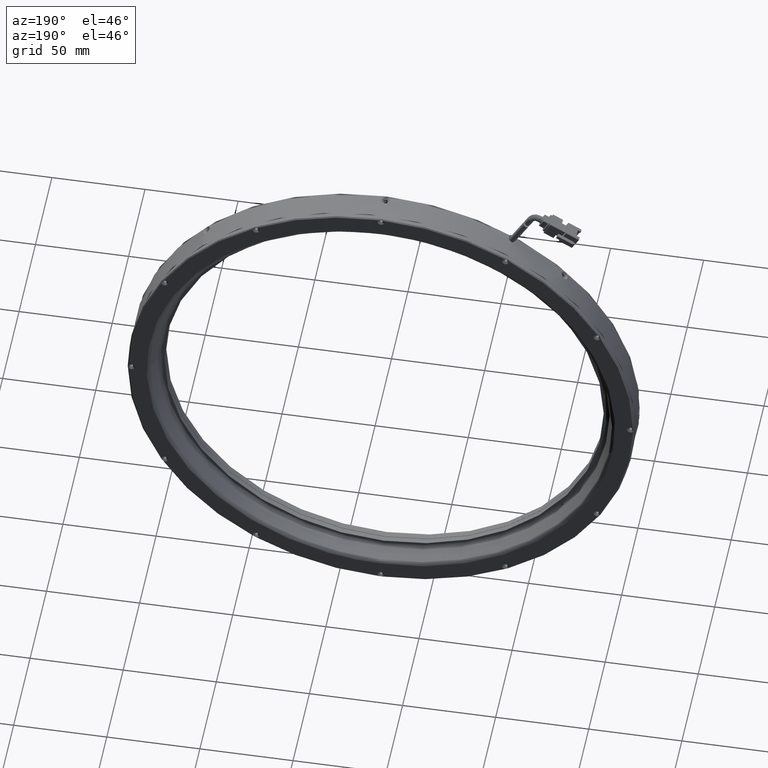
[diagram: clean part render]
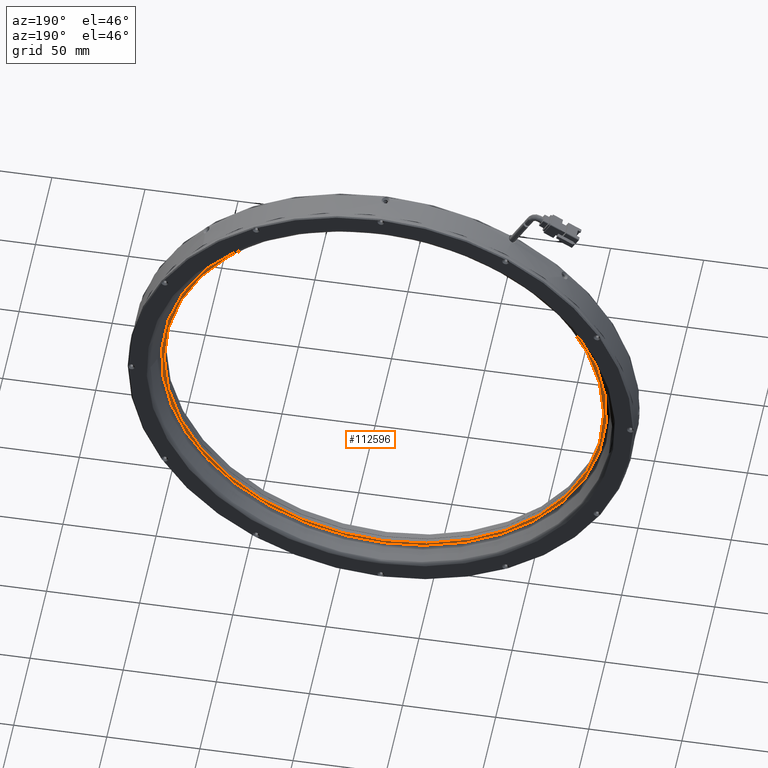
[diagram: same view with one face highlighted and labeled with its STEP entity id]
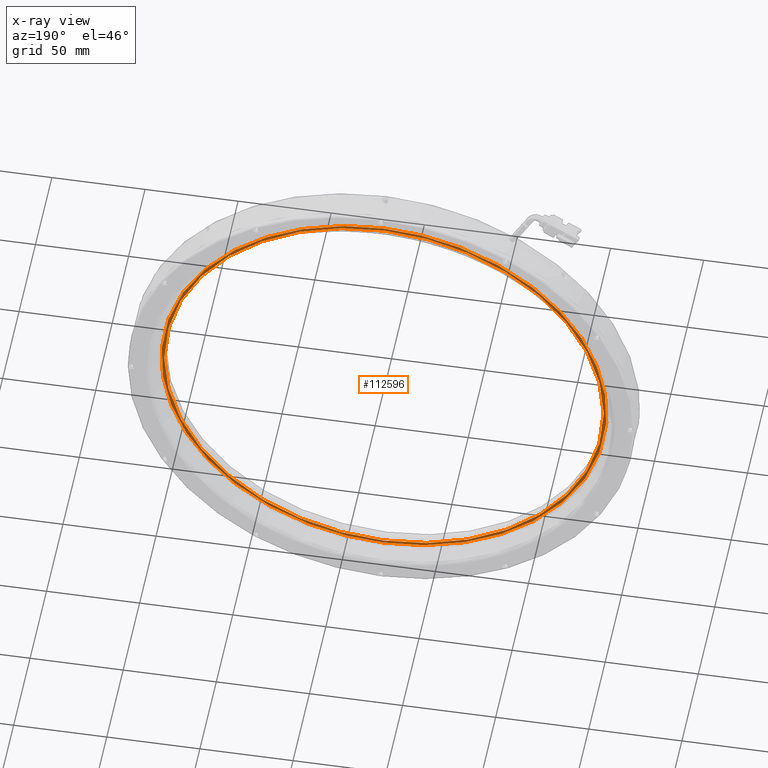
[diagram: x-ray of the same camera — body ghosted, the highlighted face saturated]
A machine part, auxiliary view. The second image highlights one B-rep face of the part: STEP entity #112596.
The next image is the same camera in x-ray: the body ghosted, the highlighted face saturated — about 0% of this face is hidden behind the body in this view.
In plain terms, the highlighted planar face has unit normal (0, -1, 0).
Its self-contained STEP definition (entity closure, byte-faithful):
#115 = CARTESIAN_POINT ( 'NONE',  ( -4.745896283955704400, 5.069982640997489300, 118.1042491407897000 ) ) ;
#563 = CARTESIAN_POINT ( 'NONE',  ( 9.361782949701062500, 5.069982640997488400, 114.9977398927673600 ) ) ;
#655 = CARTESIAN_POINT ( 'NONE',  ( -142.3293162726967000, 5.069982640997490200, -11.14572356873706100 ) ) ;
#888 = CARTESIAN_POINT ( 'NONE',  ( -23.30300868215380200, 5.069982640997488400, 117.9999999999999900 ) ) ;
#1023 = CARTESIAN_POINT ( 'NONE',  ( 25.31722640168231900, 5.069982640997489300, 109.2453331502597300 ) ) ;
#1112 = CARTESIAN_POINT ( 'NONE',  ( -142.3763801926151900, 5.069982640997490200, 10.63016265927367400 ) ) ;
#1478 = CARTESIAN_POINT ( 'NONE',  ( 41.90169733264805500, 5.069982640997489300, 100.1989405294309600 ) ) ;
#1554 = CARTESIAN_POINT ( 'NONE',  ( -139.1158593632203000, 5.069982640997489300, 29.67247452022851900 ) ) ;
#1914 = CARTESIAN_POINT ( 'NONE',  ( 67.19730367894922600, 5.069982640997488400, 78.12193431766893100 ) ) ;
#2014 = CARTESIAN_POINT ( 'NONE',  ( -134.5462056487579000, 5.069982640997487500, 43.77693603782415700 ) ) ;
#2372 = CARTESIAN_POINT ( 'NONE',  ( 77.86846808393106300, 5.069982640997489300, 63.71749375041309100 ) ) ;
#2472 = CARTESIAN_POINT ( 'NONE',  ( -125.2685960343780400, 5.069982640997489300, 62.42037116927498600 ) ) ;
#2831 = CARTESIAN_POINT ( 'NONE',  ( 87.68875019757463500, 5.069982640997489300, 44.41083708566203100 ) ) ;
#2927 = CARTESIAN_POINT ( 'NONE',  ( -113.5124740757989300, 5.069982640997489300, 78.55408161243610700 ) ) ;
#3261 = CARTESIAN_POINT ( 'NONE',  ( 92.15477018198848200, 5.069982640997489300, 31.05819913902026000 ) ) ;
#3344 = CARTESIAN_POINT ( 'NONE',  ( -89.46998820333249100, 5.069982640997488400, 99.56662697933637700 ) ) ;
#3711 = CARTESIAN_POINT ( 'NONE',  ( 95.68510171519081100, 5.069982640997488400, 11.54946828412459500 ) ) ;
#3798 = CARTESIAN_POINT ( 'NONE',  ( -73.73980043955505400, 5.069982640997487500, 108.4186332954707600 ) ) ;
#4163 = CARTESIAN_POINT ( 'NONE',  ( 95.78027947739258300, 5.069982640997488400, -10.51849889861818700 ) ) ;
#4264 = CARTESIAN_POINT ( 'NONE',  ( -56.60891110841927800, 5.069982640997488400, 114.8138001519853800 ) ) ;
#4599 = CARTESIAN_POINT ( 'NONE',  ( 93.31258533223669400, 5.069982640997490200, -26.43218414111076300 ) ) ;
#4692 = CARTESIAN_POINT ( 'NONE',  ( -43.23247024929435900, 5.069982640997488400, 117.8885876832204900 ) ) ;
#5038 = CARTESIAN_POINT ( 'NONE',  ( 88.00736063013445700, 5.069982640997488400, -43.60611809162809700 ) ) ;
#5230 = CARTESIAN_POINT ( 'NONE',  ( -27.78526670614666500, 5.069982640997488400, -119.4864677336735800 ) ) ;
#5488 = CARTESIAN_POINT ( 'NONE',  ( 80.48991042843734100, 5.069982640997487500, -59.37780717164270800 ) ) ;
#5695 = CARTESIAN_POINT ( 'NONE',  ( -44.65719858477398000, 5.069982640997489300, -117.6243496854076100 ) ) ;
#5958 = CARTESIAN_POINT ( 'NONE',  ( 69.67019254521005700, 5.069982640997489300, -75.14995372996043000 ) ) ;
#6143 = CARTESIAN_POINT ( 'NONE',  ( -58.08014844089670700, 5.069982640997488400, -114.3933952819071900 ) ) ;
#6418 = CARTESIAN_POINT ( 'NONE',  ( 43.61031736058497200, 5.069982640997489300, -99.06835436937666400 ) ) ;
#6620 = CARTESIAN_POINT ( 'NONE',  ( -77.43235357023621600, 5.069982640997488400, -106.5907609495086900 ) ) ;
#6728 = ORIENTED_EDGE ( 'NONE', *, *, #27437, .T. ) ;
#6737 = B_SPLINE_CURVE_WITH_KNOTS ( 'NONE', 3,
 ( #113987, #103528, #82973, #20637, #93476, #31135, #103993, #41683, #114449, #52091, #125012, #62544, #115, #72965, #10679, #83423, #21111, #93928, #31592, #104459, #42136, #114929, #52546, #125461, #62976, #563, #73422, #11129, #83865, #21574, #94400, #32053, #104906, #42594, #115397, #52965, #125902, #63429, #1023, #73867, #11598, #84295, #22040, #94861, #32524, #105342, #43051, #115851, #53421, #126342, #63867, #1478, #74317, #12044, #84726, #22498, #95320, #32962, #105804, #43514, #116292, #53855, #126800, #64317, #1914, #74765, #12491, #85172, #22952, #95772, #33408, #106236, #43957, #116746, #54305, #127242, #64750, #2372, #75182, #12947, #85628, #23394, #96215, #33856, #106670, #44400, #117196, #54774, #127712, #65194, #2831, #75628, #13382, #86083, #23838, #96651, #34310, #107132, #44844, #117652, #55214, #128156, #65637, #3261, #76070, #13811, #86542, #24267, #97104, #34758, #107591, #45288, #118093, #55654, #128606, #66108, #3711, #76528, #14267, #87004, #24710, #97574, #35212, #108031, #45719, #118555, #56092, #129040, #66557, #4163, #76965, #14700, #87461, #25153, #98022, #35658, #108478, #46135, #118997, #56549, #129496, #66990, #4599, #77411, #15147, #87921, #25600, #98469, #36108, #108905, #46578, #119448, #56974, #129965, #67446, #5038, #77850, #15581, #88359, #26037, #98923, #36551, #109340, #47020, #119885, #57433, #130422, #67908, #5488, #78310, #16030, #88804, #26488, #99359, #36999, #109792, #47450, #120327, #57916, #130870, #68354, #5958, #78773, #16474, #89267, #26952, #99813, #37455, #110270, #47900, #120790, #58360, #131312, #68779, #6418, #79254, #16910, #89746, #27435, #100271, #37896, #110685, #48350, #121220, #58814, #131769, #69242, #6879, #79691, #17366, #90204, #27880, #100689, #38347, #111132, #48803, #121699, #59269, #132218, #69699, #7340, #80129, #17803, #90650, #28296, #101134, #38801, #111575, #49246, #122139, #59726, #132651, #70154, #7786, #80572, #18235, #91088, #28750, #101573, #39257, #112008, #49681, #122593, #60160, #133083, #70585 ),
 .UNSPECIFIED., .F., .F.,
 ( 4, 1, 1, 1, 1, 1, 2, 2, 1, 1, 1, 1, 1, 2, 2, 1, 1, 1, 1, 1, 2, 2, 1, 1, 1, 1, 1, 2, 2, 1, 1, 1, 1, 2, 2, 1, 1, 1, 1, 2, 2, 1, 1, 1, 2, 2, 2, 1, 1, 1, 2, 2, 1, 1, 1, 1, 2, 2, 1, 1, 1, 1, 2, 2, 1, 1, 1, 1, 1, 2, 2, 1, 1, 1, 1, 1, 2, 2, 1, 1, 1, 1, 1, 2, 2, 1, 1, 1, 1, 1, 2, 2, 2, 1, 1, 1, 1, 1, 2, 2, 1, 1, 1, 1, 1, 2, 2, 1, 1, 1, 1, 1, 2, 2, 1, 1, 1, 1, 1, 2, 2, 1, 1, 1, 1, 2, 2, 1, 1, 1, 1, 2, 2, 1, 1, 1, 2, 2, 2, 1, 1, 1, 2, 2, 1, 1, 1, 1, 2, 2, 1, 1, 1, 1, 2, 2, 1, 1, 1, 1, 1, 2, 2, 1, 1, 1, 1, 1, 2, 2, 1, 1, 1, 1, 1, 2, 2, 1, 1, 1, 1, 1, 2, 2, 4 ),
 ( 0.0000000000000000000, 0.01562500000000236600, 0.02343750000000354900, 0.02734375000000414600, 0.02929687500000444400, 0.03027343750000459700, 0.03076171875000467000, 0.03125000000000473900, 0.04687500000000682100, 0.05468750000000784800, 0.05859375000000836800, 0.06054687500000861100, 0.06152343750000874300, 0.06201171875000881200, 0.06250000000000888200, 0.07812500000001088000, 0.08593750000001187900, 0.08984375000001237900, 0.09179687500001265700, 0.09277343750001279500, 0.09326171875001287900, 0.09375000000001294800, 0.1093750000000154600, 0.1171875000000167100, 0.1210937500000173100, 0.1230468750000176400, 0.1240234375000177800, 0.1245117187500178900, 0.1250000000000179900, 0.1406250000000207600, 0.1484375000000222000, 0.1523437500000229000, 0.1542968750000232600, 0.1552734375000234300, 0.1562500000000236200, 0.1718750000000265600, 0.1796875000000280100, 0.1835937500000288100, 0.1855468750000292000, 0.1865234375000293700, 0.1875000000000295000, 0.2031250000000322500, 0.2109375000000336700, 0.2148437500000343900, 0.2167968750000348100, 0.2187500000000352200, 0.2500000000000408600, 0.2656250000000436900, 0.2734375000000450200, 0.2773437500000457400, 0.2792968750000460700, 0.2812500000000464100, 0.2968750000000489600, 0.3046875000000502400, 0.3085937500000509600, 0.3105468750000512900, 0.3115234375000514600, 0.3125000000000516300, 0.3281250000000537300, 0.3359375000000547900, 0.3398437500000553400, 0.3417968750000555700, 0.3427734375000556800, 0.3437500000000557900, 0.3593750000000567900, 0.3671875000000573400, 0.3710937500000575700, 0.3730468750000577300, 0.3740234375000577900, 0.3745117187500578400, 0.3750000000000578400, 0.3906250000000598400, 0.3984375000000608400, 0.4023437500000614000, 0.4042968750000616200, 0.4052734375000617300, 0.4057617187500617300, 0.4062500000000617300, 0.4218750000000620600, 0.4296875000000621700, 0.4335937500000622800, 0.4355468750000622800, 0.4365234375000623400, 0.4370117187500623400, 0.4375000000000623400, 0.4531250000000623900, 0.4609375000000623400, 0.4648437500000623400, 0.4667968750000623400, 0.4677734375000623400, 0.4682617187500623400, 0.4687500000000623900, 0.5000000000000621700, 0.5156250000000620600, 0.5234375000000620600, 0.5273437500000619500, 0.5292968750000619500, 0.5302734375000619500, 0.5307617187500619500, 0.5312500000000619500, 0.5468750000000614000, 0.5546875000000611700, 0.5585937500000610600, 0.5605468750000610600, 0.5615234375000610600, 0.5620117187500610600, 0.5625000000000609500, 0.5781250000000605100, 0.5859375000000601700, 0.5898437500000601700, 0.5917968750000600600, 0.5927734375000601700, 0.5932617187500600600, 0.5937500000000600600, 0.6093750000000585100, 0.6171875000000577300, 0.6210937500000572900, 0.6230468750000571800, 0.6240234375000570700, 0.6245117187500570700, 0.6250000000000569500, 0.6406250000000551800, 0.6484375000000540700, 0.6523437500000536200, 0.6542968750000532900, 0.6552734375000532900, 0.6562500000000531800, 0.6718750000000507400, 0.6796875000000496300, 0.6835937500000489600, 0.6855468750000486300, 0.6865234375000484100, 0.6875000000000482900, 0.7031250000000451900, 0.7109375000000436300, 0.7148437500000428500, 0.7167968750000425200, 0.7187500000000420800, 0.7500000000000375300, 0.7656250000000353100, 0.7734375000000341900, 0.7773437500000336400, 0.7792968750000334200, 0.7812500000000332000, 0.7968750000000308600, 0.8046875000000297500, 0.8085937500000290900, 0.8105468750000288700, 0.8115234375000287500, 0.8125000000000286400, 0.8281250000000273100, 0.8359375000000265300, 0.8398437500000262000, 0.8417968750000259800, 0.8427734375000259800, 0.8437500000000258700, 0.8593750000000236500, 0.8671875000000225400, 0.8710937500000219800, 0.8730468750000216500, 0.8740234375000214300, 0.8745117187500214300, 0.8750000000000213200, 0.8906250000000177600, 0.8984375000000158800, 0.9023437500000151000, 0.9042968750000145400, 0.9052734375000144300, 0.9057617187500143200, 0.9062500000000143200, 0.9218750000000118800, 0.9296875000000107700, 0.9335937500000101000, 0.9355468750000098800, 0.9365234375000096600, 0.9370117187500096600, 0.9375000000000096600, 0.9531250000000069900, 0.9609375000000057700, 0.9648437500000051100, 0.9667968750000048800, 0.9677734375000046600, 0.9682617187500046600, 0.9687500000000045500, 1.000000000000000000 ),
 .UNSPECIFIED. ) ;
#6879 = CARTESIAN_POINT ( 'NONE',  ( 29.82845623599510200, 5.069982640997490200, -107.1097880025811100 ) ) ;
#7085 = CARTESIAN_POINT ( 'NONE',  ( -92.96812802175973900, 5.069982640997488400, -97.18858226209849200 ) ) ;
#7340 = CARTESIAN_POINT ( 'NONE',  ( 10.41405949609068500, 5.069982640997488400, -114.6940759176634400 ) ) ;
#7398 = B_SPLINE_CURVE_WITH_KNOTS ( 'NONE', 3,
 ( #67650, #130162, #5230, #78045, #15784, #88554, #26249, #99108, #36755, #109526, #47207, #120086, #57646, #130620, #68096, #5695, #78509, #16224, #89023, #26693, #99558, #37179, #110007, #47641, #120531, #58119, #131075, #68538, #6143, #78995, #16668, #89480, #27166, #100018, #37666, #110451, #48092, #120979, #58565, #131507, #68974, #6620, #79437, #17101, #89944, #27625, #100461, #38098, #110879, #48536, #121424, #59017, #131958, #69453, #7085, #79884, #17554, #90385, #28066, #100883, #38547, #111310, #49005, #121875, #59480, #132400, #69900, #7540, #80317, #17983, #90845, #28492, #101322, #39003, #111773, #49436, #122340, #59914, #132840, #70335, #7976, #80765, #18429, #91296, #28926, #101762, #39453, #112197, #49895, #122797, #60362, #133267, #70778, #8426, #81202, #18874, #91740, #29375, #102226, #39898, #112642, #50336, #123242, #60779, #133725, #71228, #8868, #81623, #21200, #94023, #31683, #104541, #42237, #115037, #52628, #125556, #63075, #655, #73510, #11221, #83960, #21669, #94491, #32138, #104997, #42688, #115486, #53050, #125999, #63522, #1112, #73948, #11690, #84384, #22138, #94949, #32615, #105438, #43133, #115934, #53521, #126437, #63946, #1554, #74410, #12134, #84812, #22576, #95416, #33051, #105894, #43602, #116389, #53947, #126886, #64402, #2014, #74854, #12589, #85254, #23047, #95866, #33500, #106323, #44049, #116842, #54393, #127329, #64846, #2472, #75274, #13028, #85729, #23491, #96307, #33938, #106767, #44490, #117294, #54869, #127797, #65297, #2927, #75710, #13462, #86186, #23935, #96726, #34409, #107241, #44939, #117732, #55308, #128254, #65728, #3344, #76167, #13912, #86636, #24345, #97210, #34856, #107679, #45367, #118186, #55755, #128692, #66196, #3798, #76623, #14347, #87088, #24802, #97663, #35305, #108109, #45802, #118646, #56189, #129128, #66644, #4264, #77055, #14786, #87557, #25242, #98111, #35738, #108567, #46227, #119094, #56629, #129590, #67083, #4692, #77494, #15241, #88008, #25685, #98555, #36190, #109000, #46670, #119532, #57072, #130067 ),
 .UNSPECIFIED., .F., .F.,
 ( 4, 1, 1, 1, 1, 1, 2, 2, 1, 1, 1, 1, 1, 2, 2, 1, 1, 1, 1, 1, 2, 2, 1, 1, 1, 1, 1, 2, 2, 1, 1, 1, 1, 2, 2, 1, 1, 1, 1, 2, 2, 1, 1, 1, 2, 2, 2, 1, 1, 1, 2, 2, 1, 1, 1, 1, 2, 2, 1, 1, 1, 1, 2, 2, 1, 1, 1, 1, 1, 2, 2, 1, 1, 1, 1, 1, 2, 2, 1, 1, 1, 1, 1, 2, 2, 1, 1, 1, 1, 1, 2, 2, 2, 1, 1, 1, 1, 1, 2, 2, 1, 1, 1, 1, 1, 2, 2, 1, 1, 1, 1, 1, 2, 2, 1, 1, 1, 1, 1, 2, 2, 1, 1, 1, 1, 2, 2, 1, 1, 1, 1, 2, 2, 1, 1, 1, 2, 2, 2, 1, 1, 1, 2, 2, 1, 1, 1, 1, 2, 2, 1, 1, 1, 1, 2, 2, 1, 1, 1, 1, 1, 2, 2, 1, 1, 1, 1, 1, 2, 2, 1, 1, 1, 1, 1, 2, 2, 1, 1, 1, 1, 1, 2, 2, 4 ),
 ( 0.0000000000000000000, 0.01562499999999889300, 0.02343749999999832800, 0.02734374999999802900, 0.02929687499999788400, 0.03027343749999781800, 0.03076171874999781400, 0.03124999999999780700, 0.04687499999999895200, 0.05468749999999950700, 0.05859374999999979200, 0.06054687499999989600, 0.06152343749999995800, 0.06201171874999995800, 0.06249999999999995800, 0.07812499999999966700, 0.08593749999999950000, 0.08984374999999940300, 0.09179687499999938900, 0.09277343749999936200, 0.09326171874999936200, 0.09374999999999934800, 0.1093749999999986800, 0.1171874999999983200, 0.1210937499999981700, 0.1230468749999980400, 0.1240234374999979700, 0.1245117187499979300, 0.1249999999999979200, 0.1406249999999960300, 0.1484374999999950600, 0.1523437499999945300, 0.1542968749999942500, 0.1552734374999941700, 0.1562499999999940600, 0.1718749999999928400, 0.1796874999999921500, 0.1835937499999918100, 0.1855468749999916700, 0.1865234374999916200, 0.1874999999999915300, 0.2031249999999916200, 0.2109374999999916500, 0.2148437499999917000, 0.2167968749999917800, 0.2187499999999918700, 0.2499999999999943900, 0.2656249999999956100, 0.2734374999999962300, 0.2773437499999965600, 0.2792968749999967800, 0.2812499999999969500, 0.2968749999999984500, 0.3046874999999991700, 0.3085937499999995000, 0.3105468749999997200, 0.3115234374999998300, 0.3125000000000000000, 0.3281250000000015000, 0.3359375000000022800, 0.3398437500000026100, 0.3417968750000027800, 0.3427734375000028300, 0.3437500000000028300, 0.3593750000000027800, 0.3671875000000027200, 0.3710937500000027200, 0.3730468750000027800, 0.3740234375000027800, 0.3745117187500027200, 0.3750000000000026600, 0.3906250000000002200, 0.3984374999999990000, 0.4023437499999983900, 0.4042968749999980600, 0.4052734374999978900, 0.4057617187499978400, 0.4062499999999978400, 0.4218749999999965600, 0.4296874999999959500, 0.4335937499999956100, 0.4355468749999954500, 0.4365234374999953900, 0.4370117187499953400, 0.4374999999999953400, 0.4531249999999937800, 0.4609374999999930100, 0.4648437499999926200, 0.4667968749999923900, 0.4677734374999922800, 0.4682617187499921700, 0.4687499999999921200, 0.4999999999999885600, 0.5156249999999867900, 0.5234374999999859000, 0.5273437499999855700, 0.5292968749999852300, 0.5302734374999852300, 0.5307617187499851200, 0.5312499999999851200, 0.5468749999999827900, 0.5546874999999815700, 0.5585937499999810200, 0.5605468749999806800, 0.5615234374999805700, 0.5620117187499804600, 0.5624999999999804600, 0.5781249999999786800, 0.5859374999999778000, 0.5898437499999773500, 0.5917968749999770200, 0.5927734374999769100, 0.5932617187499768000, 0.5937499999999768000, 0.6093749999999759100, 0.6171874999999754600, 0.6210937499999753500, 0.6230468749999751300, 0.6240234374999751300, 0.6245117187499751300, 0.6249999999999750200, 0.6406249999999739100, 0.6484374999999733500, 0.6523437499999731300, 0.6542968749999730200, 0.6552734374999729100, 0.6562499999999728000, 0.6718749999999716900, 0.6796874999999711300, 0.6835937499999709100, 0.6855468749999709100, 0.6865234374999709100, 0.6874999999999709100, 0.7031249999999709100, 0.7109374999999709100, 0.7148437499999709100, 0.7167968749999709100, 0.7187499999999708000, 0.7499999999999708000, 0.7656249999999709100, 0.7734374999999709100, 0.7773437499999709100, 0.7792968749999710200, 0.7812499999999711300, 0.7968749999999713600, 0.8046874999999714700, 0.8085937499999715800, 0.8105468749999716900, 0.8115234374999716900, 0.8124999999999718000, 0.8281249999999730200, 0.8359374999999735800, 0.8398437499999738000, 0.8417968749999740200, 0.8427734374999741300, 0.8437499999999743500, 0.8593749999999764600, 0.8671874999999775700, 0.8710937499999780200, 0.8730468749999782400, 0.8740234374999783500, 0.8745117187499784600, 0.8749999999999785700, 0.8906249999999810200, 0.8984374999999822400, 0.9023437499999827900, 0.9042968749999831200, 0.9052734374999832400, 0.9057617187499833500, 0.9062499999999834600, 0.9218749999999866800, 0.9296874999999883400, 0.9335937499999891200, 0.9355468749999895600, 0.9365234374999897900, 0.9370117187499899000, 0.9374999999999900100, 0.9531249999999928900, 0.9609374999999943400, 0.9648437499999950000, 0.9667968749999953400, 0.9677734374999955600, 0.9682617187499955600, 0.9687499999999956700, 1.000000000000000000 ),
 .UNSPECIFIED. ) ;
#7540 = CARTESIAN_POINT ( 'NONE',  ( -115.7879319277401300, 5.069982640997489300, -75.75005846452170000 ) ) ;
#7786 = CARTESIAN_POINT ( 'NONE',  ( -1.492897745993486000, 5.069982640997487500, -117.5405775433969900 ) ) ;
#7976 = CARTESIAN_POINT ( 'NONE',  ( -128.6688690955014400, 5.069982640997488400, -56.47970943259198200 ) ) ;
#8426 = CARTESIAN_POINT ( 'NONE',  ( -134.4338042642546600, 5.069982640997487500, -44.06149078274599200 ) ) ;
#8868 = CARTESIAN_POINT ( 'NONE',  ( -140.5403773136674500, 5.069982640997487500, -23.39376508023037400 ) ) ;
#10679 = CARTESIAN_POINT ( 'NONE',  ( -2.347913148414400000, 5.069982640997489300, 117.6964087367777100 ) ) ;
#11129 = CARTESIAN_POINT ( 'NONE',  ( 9.532468790698386500, 5.069982640997488400, 114.9491196765285100 ) ) ;
#11221 = CARTESIAN_POINT ( 'NONE',  ( -142.3558908563925300, 5.069982640997489300, -10.85723855600854800 ) ) ;
#11598 = CARTESIAN_POINT ( 'NONE',  ( 30.04615219074980100, 5.069982640997488400, 106.9849283108749500 ) ) ;
#11690 = CARTESIAN_POINT ( 'NONE',  ( -142.1996916718607900, 5.069982640997488400, 12.58893874801731800 ) ) ;
#12044 = CARTESIAN_POINT ( 'NONE',  ( 43.83209298303183500, 5.069982640997489300, 98.93711773355789800 ) ) ;
#12134 = CARTESIAN_POINT ( 'NONE',  ( -138.4627273666401900, 5.069982640997489300, 32.09058503302802000 ) ) ;
#12491 = CARTESIAN_POINT ( 'NONE',  ( 68.85434932858792900, 5.069982640997487500, 76.14824921987299400 ) ) ;
#12589 = CARTESIAN_POINT ( 'NONE',  ( -134.4793276859653600, 5.069982640997491100, 43.94650097621106300 ) ) ;
#12947 = CARTESIAN_POINT ( 'NONE',  ( 81.21755446657863300, 5.069982640997489300, 58.04080963305830200 ) ) ;
#13028 = CARTESIAN_POINT ( 'NONE',  ( -123.8468937346277100, 5.069982640997489300, 64.67230532272036200 ) ) ;
#13382 = CARTESIAN_POINT ( 'NONE',  ( 87.80428677091727300, 5.069982640997488400, 44.12071895697461300 ) ) ;
#13462 = CARTESIAN_POINT ( 'NONE',  ( -106.3763729345818900, 5.069982640997489300, 85.99149114784505300 ) ) ;
#13525 = EDGE_CURVE ( 'NONE', #39169, #128696, #7398, .T. ) ;
#13811 = CARTESIAN_POINT ( 'NONE',  ( 93.60113097813594200, 5.069982640997488400, 25.02986973080622200 ) ) ;
#13912 = CARTESIAN_POINT ( 'NONE',  ( -88.93482222227910900, 5.069982640997490200, 99.91970163262510600 ) ) ;
#14267 = CARTESIAN_POINT ( 'NONE',  ( 95.73929371453869000, 5.069982640997488400, 10.97263933269262100 ) ) ;
#14347 = CARTESIAN_POINT ( 'NONE',  ( -68.92920628659278700, 5.069982640997488400, 110.4995833237091200 ) ) ;
#14700 = CARTESIAN_POINT ( 'NONE',  ( 95.76553606174019300, 5.069982640997489300, -10.68409841617496500 ) ) ;
#14786 = CARTESIAN_POINT ( 'NONE',  ( -56.31496570857218100, 5.069982640997488400, 114.8985616647144500 ) ) ;
#15147 = CARTESIAN_POINT ( 'NONE',  ( 92.07928490583154300, 5.069982640997489300, -31.28570126797825800 ) ) ;
#15241 = CARTESIAN_POINT ( 'NONE',  ( -37.27162719473537300, 5.069982640997489300, 118.7343998306910200 ) ) ;
#15581 = CARTESIAN_POINT ( 'NONE',  ( 87.89531791030795200, 5.069982640997489300, -43.89078428561027300 ) ) ;
#15784 = CARTESIAN_POINT ( 'NONE',  ( -32.48115745155818200, 5.069982640997489300, -119.1955652249879900 ) ) ;
#16030 = CARTESIAN_POINT ( 'NONE',  ( 77.71965365886382000, 5.069982640997488400, -63.92451668546894400 ) ) ;
#16224 = CARTESIAN_POINT ( 'NONE',  ( -44.94216720284956800, 5.069982640997488400, -117.5721701990633500 ) ) ;
#16252 = FACE_OUTER_BOUND ( 'NONE', #41018, .T. ) ;
#16474 = CARTESIAN_POINT ( 'NONE',  ( 64.14756562857819200, 5.069982640997487500, -81.61432052212626300 ) ) ;
#16668 = CARTESIAN_POINT ( 'NONE',  ( -64.10793457726158800, 5.069982640997487500, -112.3748798105198100 ) ) ;
#16910 = CARTESIAN_POINT ( 'NONE',  ( 42.54301675578773300, 5.069982640997488400, -99.77867184316534100 ) ) ;
#17101 = CARTESIAN_POINT ( 'NONE',  ( -77.98824526685218900, 5.069982640997490200, -106.3061887039242800 ) ) ;
#17366 = CARTESIAN_POINT ( 'NONE',  ( 23.93575993674054600, 5.069982640997489300, -109.8258884796522800 ) ) ;
#17554 = CARTESIAN_POINT ( 'NONE',  ( -97.25240130481701300, 5.069982640997488400, -93.93305799209170500 ) ) ;
#17803 = CARTESIAN_POINT ( 'NONE',  ( 9.826544544926065300, 5.069982640997489300, -114.8647104100389400 ) ) ;
#17983 = CARTESIAN_POINT ( 'NONE',  ( -117.4072683893584600, 5.069982640997488400, -73.75678564310601400 ) ) ;
#18235 = CARTESIAN_POINT ( 'NONE',  ( -6.117704699137180800, 5.069982640997488400, -118.3307126550010800 ) ) ;
#18429 = CARTESIAN_POINT ( 'NONE',  ( -129.2606117335226700, 5.069982640997487500, -55.35764079730785200 ) ) ;
#18874 = CARTESIAN_POINT ( 'NONE',  ( -136.1902368079366300, 5.069982640997487500, -39.42918892275854900 ) ) ;
#20637 = CARTESIAN_POINT ( 'NONE',  ( -15.68934441032323500, 5.069982640997488400, 119.3101631829550100 ) ) ;
#21111 = CARTESIAN_POINT ( 'NONE',  ( -1.777830635271291800, 5.069982640997486600, 117.5930920219628600 ) ) ;
#21200 = CARTESIAN_POINT ( 'NONE',  ( -140.7775190343380100, 5.069982640997489300, -22.16370795991277400 ) ) ;
#21574 = CARTESIAN_POINT ( 'NONE',  ( 14.27503300645378900, 5.069982640997490200, 113.5168625184844300 ) ) ;
#21669 = CARTESIAN_POINT ( 'NONE',  ( -142.6887468731057700, 5.069982640997489300, -7.168122897540309100 ) ) ;
#22040 = CARTESIAN_POINT ( 'NONE',  ( 31.15996881926166800, 5.069982640997489300, 106.4202310701517000 ) ) ;
#22138 = CARTESIAN_POINT ( 'NONE',  ( -141.4072578230683900, 5.069982640997489300, 18.55711239737083000 ) ) ;
#22498 = CARTESIAN_POINT ( 'NONE',  ( 49.23193643002488100, 5.069982640997489300, 95.03686010182752900 ) ) ;
#22576 = CARTESIAN_POINT ( 'NONE',  ( -138.3007485749068900, 5.069982640997490200, 32.66479163194701800 ) ) ;
#22952 = CARTESIAN_POINT ( 'NONE',  ( 69.34591595223606900, 5.069982640997488400, 75.54937290938582400 ) ) ;
#23047 = CARTESIAN_POINT ( 'NONE',  ( -132.5483418326748200, 5.069982640997488400, 48.62023508319910500 ) ) ;
#23394 = CARTESIAN_POINT ( 'NONE',  ( 82.47817098472349100, 5.069982640997487500, 55.69490025008884300 ) ) ;
#23491 = CARTESIAN_POINT ( 'NONE',  ( -123.5019492115782100, 5.069982640997487500, 65.20470601482391300 ) ) ;
#23838 = CARTESIAN_POINT ( 'NONE',  ( 88.57119178123973300, 5.069982640997489300, 42.18366459687990000 ) ) ;
#23935 = CARTESIAN_POINT ( 'NONE',  ( -101.4249430001587300, 5.069982640997488400, 90.50031236083684400 ) ) ;
#24267 = CARTESIAN_POINT ( 'NONE',  ( 94.09367157342623500, 5.069982640997489300, 22.57401067904853100 ) ) ;
#24345 = CARTESIAN_POINT ( 'NONE',  ( -87.02050243244293900, 5.069982640997489300, 101.1714767661222000 ) ) ;
#24710 = CARTESIAN_POINT ( 'NONE',  ( 95.75529060824762000, 5.069982640997488400, 10.79765988099387600 ) ) ;
#24802 = CARTESIAN_POINT ( 'NONE',  ( -67.71384576785267500, 5.069982640997487500, 110.9917588797148900 ) ) ;
#25153 = CARTESIAN_POINT ( 'NONE',  ( 95.27965725253771700, 5.069982640997488400, -15.35068975968336600 ) ) ;
#25242 = CARTESIAN_POINT ( 'NONE',  ( -54.36120782089197700, 5.069982640997488400, 115.4577788642229900 ) ) ;
#25600 = CARTESIAN_POINT ( 'NONE',  ( 91.74359846154352700, 5.069982640997488400, -32.49259451242588900 ) ) ;
#25685 = CARTESIAN_POINT ( 'NONE',  ( -34.85247696615618900, 5.069982640997489300, 118.9881103973558500 ) ) ;
#26037 = CARTESIAN_POINT ( 'NONE',  ( 87.11444228594923800, 5.069982640997490200, -45.86333840730834100 ) ) ;
#26146 = CARTESIAN_POINT ( 'NONE',  ( -142.8499236903594500, 5.069982640997488400, -2.420481350073888600E-014 ) ) ;
#26249 = CARTESIAN_POINT ( 'NONE',  ( -33.65398767645235300, 5.069982640997489300, -119.0980467703718100 ) ) ;
#26488 = CARTESIAN_POINT ( 'NONE',  ( 77.03411865028003500, 5.069982640997489300, -64.99186814146058600 ) ) ;
#26693 = CARTESIAN_POINT ( 'NONE',  ( -46.93408070623054600, 5.069982640997487500, -117.2035954076872300 ) ) ;
#26952 = CARTESIAN_POINT ( 'NONE',  ( 57.52827334067524100, 5.069982640997489300, -88.12055808596923600 ) ) ;
#27166 = CARTESIAN_POINT ( 'NONE',  ( -66.51023254471763800, 5.069982640997489300, -111.4661722765620300 ) ) ;
#27435 = CARTESIAN_POINT ( 'NONE',  ( 42.22046320552767900, 5.069982640997487500, -99.99077839663638700 ) ) ;
#27437 = EDGE_CURVE ( 'NONE', #128696, #39169, #6737, .T. ) ;
#27625 = CARTESIAN_POINT ( 'NONE',  ( -80.01415020028372300, 5.069982640997488400, -105.2588864510658500 ) ) ;
#27880 = CARTESIAN_POINT ( 'NONE',  ( 21.51351355323116700, 5.069982640997489300, -110.8289475589216100 ) ) ;
#28066 = CARTESIAN_POINT ( 'NONE',  ( -98.25443734882202300, 5.069982640997487500, -93.13331845071489600 ) ) ;
#28075 = AXIS2_PLACEMENT_3D ( 'NONE', #26146, #99030, #36665 ) ;
#28089 = ORIENTED_EDGE ( 'NONE', *, *, #34402, .F. ) ;
#28296 = CARTESIAN_POINT ( 'NONE',  ( 9.648685685066709500, 5.069982640997488400, -114.9158576895849000 ) ) ;
#28492 = CARTESIAN_POINT ( 'NONE',  ( -121.3608127921817800, 5.069982640997487500, -68.39583372180571500 ) ) ;
#28750 = CARTESIAN_POINT ( 'NONE',  ( -10.94652497644898900, 5.069982640997487500, -118.9082120955839900 ) ) ;
#28926 = CARTESIAN_POINT ( 'NONE',  ( -129.4372353913615300, 5.069982640997487500, -55.01823835235516900 ) ) ;
#29375 = CARTESIAN_POINT ( 'NONE',  ( -137.7539016019563300, 5.069982640997487500, -34.53813683208505100 ) ) ;
#31135 = CARTESIAN_POINT ( 'NONE',  ( -13.34292231992403500, 5.069982640997487500, 119.1316548253524000 ) ) ;
#31592 = CARTESIAN_POINT ( 'NONE',  ( -1.608573072768863200, 5.069982640997488400, 117.5619835520081700 ) ) ;
#31683 = CARTESIAN_POINT ( 'NONE',  ( -140.8323729804554000, 5.069982640997490200, -21.87046235514133800 ) ) ;
#32053 = CARTESIAN_POINT ( 'NONE',  ( 19.10515063736078600, 5.069982640997488400, 111.7740481692437000 ) ) ;
#32138 = CARTESIAN_POINT ( 'NONE',  ( -142.8499157314014400, 5.069982640997489300, 1.794105595126073800 ) ) ;
#32524 = CARTESIAN_POINT ( 'NONE',  ( 31.49149988277117600, 5.069982640997489300, 106.2499080561481000 ) ) ;
#32615 = CARTESIAN_POINT ( 'NONE',  ( -140.9994174189705200, 5.069982640997489300, 20.95509553348082200 ) ) ;
#32962 = CARTESIAN_POINT ( 'NONE',  ( 51.24819029150369700, 5.069982640997489300, 93.45401258271617500 ) ) ;
#33051 = CARTESIAN_POINT ( 'NONE',  ( -138.2521283586932600, 5.069982640997489300, 32.83547747282507600 ) ) ;
#33408 = CARTESIAN_POINT ( 'NONE',  ( 72.67767474559615000, 5.069982640997488400, 71.32010763243819400 ) ) ;
#33500 = CARTESIAN_POINT ( 'NONE',  ( -130.2879369931431500, 5.069982640997488400, 53.34916087262487800 ) ) ;
#33856 = CARTESIAN_POINT ( 'NONE',  ( 82.77186094089854900, 5.069982640997491100, 55.13259834859130800 ) ) ;
#33938 = CARTESIAN_POINT ( 'NONE',  ( -122.2401264151493800, 5.069982640997488400, 67.13510166594686300 ) ) ;
#34310 = CARTESIAN_POINT ( 'NONE',  ( 90.64658012737828600, 5.069982640997488400, 36.17522273324327400 ) ) ;
#34402 = EDGE_CURVE ( 'NONE', #94109, #114700, #79608, .T. ) ;
#34409 = CARTESIAN_POINT ( 'NONE',  ( -99.45125790214480300, 5.069982640997488400, 92.15735801064822400 ) ) ;
#34758 = CARTESIAN_POINT ( 'NONE',  ( 94.20446620100385400, 5.069982640997489300, 21.98777275467154600 ) ) ;
#34856 = CARTESIAN_POINT ( 'NONE',  ( -81.34381831504944700, 5.069982640997489300, 104.5205631487813100 ) ) ;
#35212 = CARTESIAN_POINT ( 'NONE',  ( 96.24392224401481100, 5.069982640997486600, 3.588211191059722100 ) ) ;
#35305 = CARTESIAN_POINT ( 'NONE',  ( -67.42372763913921600, 5.069982640997487500, 111.1072954530670800 ) ) ;
#35658 = CARTESIAN_POINT ( 'NONE',  ( 94.53401617115383700, 5.069982640997489300, -20.15641866337258700 ) ) ;
#35738 = CARTESIAN_POINT ( 'NONE',  ( -48.33287841258982800, 5.069982640997488400, 116.9041396603956600 ) ) ;
#36108 = CARTESIAN_POINT ( 'NONE',  ( 91.66206618196005700, 5.069982640997490200, -32.77956912081987200 ) ) ;
#36190 = CARTESIAN_POINT ( 'NONE',  ( -34.27564801480992400, 5.069982640997488400, 119.0423023966958300 ) ) ;
#36551 = CARTESIAN_POINT ( 'NONE',  ( 84.45531159022962700, 5.069982640997488400, -51.78196117115631100 ) ) ;
#36665 = DIRECTION ( 'NONE',  ( 0.0000000000000000000, -0.0000000000000000000, -1.000000000000000000 ) ) ;
#36755 = CARTESIAN_POINT ( 'NONE',  ( -33.93316587115103300, 5.069982640997490200, -119.0733720040100800 ) ) ;
#36999 = CARTESIAN_POINT ( 'NONE',  ( 76.82741715403135200, 5.069982640997487500, -65.30987139299351400 ) ) ;
#37179 = CARTESIAN_POINT ( 'NONE',  ( -52.97548320126330200, 5.069982640997488400, -115.8128506813079600 ) ) ;
#37455 = CARTESIAN_POINT ( 'NONE',  ( 53.44085550897464300, 5.069982640997488400, -91.66415020859295700 ) ) ;
#37666 = CARTESIAN_POINT ( 'NONE',  ( -67.07994471991499100, 5.069982640997488400, -111.2431969666297000 ) ) ;
#37896 = CARTESIAN_POINT ( 'NONE',  ( 37.82592869603903600, 5.069982640997488400, -102.7713335876633400 ) ) ;
#38098 = CARTESIAN_POINT ( 'NONE',  ( -85.72337985174911500, 5.069982640997488400, -101.9655873520495200 ) ) ;
#38347 = CARTESIAN_POINT ( 'NONE',  ( 20.93378173957185200, 5.069982640997488400, -111.0611342750767500 ) ) ;
#38547 = CARTESIAN_POINT ( 'NONE',  ( -101.8570902945375800, 5.069982640997488400, -90.20946539364432200 ) ) ;
#38801 = CARTESIAN_POINT ( 'NONE',  ( 4.985453747125713900, 5.069982640997488400, -116.1792588251425400 ) ) ;
#39003 = CARTESIAN_POINT ( 'NONE',  ( -122.8696356614254600, 5.069982640997488400, -66.16697952125393600 ) ) ;
#39169 = VERTEX_POINT ( 'NONE', #77299 ) ;
#39257 = CARTESIAN_POINT ( 'NONE',  ( -12.15728511337108500, 5.069982640997489300, -119.0263075905373000 ) ) ;
#39453 = CARTESIAN_POINT ( 'NONE',  ( -131.7216419773442300, 5.069982640997487500, -50.43679175799056900 ) ) ;
#39898 = CARTESIAN_POINT ( 'NONE',  ( -138.1168088340535300, 5.069982640997489300, -33.30590242649610400 ) ) ;
#41018 = EDGE_LOOP ( 'NONE', ( #69190, #6728 ) ) ;
#41683 = CARTESIAN_POINT ( 'NONE',  ( -12.78452059486977500, 5.069982640997489300, 119.0832891349879500 ) ) ;
#42136 = CARTESIAN_POINT ( 'NONE',  ( 3.129175459469927900, 5.069982640997488400, 116.6155940141977300 ) ) ;
#42237 = CARTESIAN_POINT ( 'NONE',  ( -141.1915963653602300, 5.069982640997489300, -19.92946156714929300 ) ) ;
#42594 = CARTESIAN_POINT ( 'NONE',  ( 20.30310940933112500, 5.069982640997489300, 111.3103693123349100 ) ) ;
#42688 = CARTESIAN_POINT ( 'NONE',  ( -142.6131614189764600, 5.069982640997488400, 7.613780051644075000 ) ) ;
#43051 = CARTESIAN_POINT ( 'NONE',  ( 36.07479848896176100, 5.069982640997488400, 103.7929191107577900 ) ) ;
#43133 = CARTESIAN_POINT ( 'NONE',  ( -140.8961007041284300, 5.069982640997488400, 21.52517804680522700 ) ) ;
#43514 = CARTESIAN_POINT ( 'NONE',  ( 51.84694504770583000, 5.069982640997490200, 92.97320122745799200 ) ) ;
#43602 = CARTESIAN_POINT ( 'NONE',  ( -136.8198712000258900, 5.069982640997488400, 37.57804169013157700 ) ) ;
#43957 = CARTESIAN_POINT ( 'NONE',  ( 75.76534568752477100, 5.069982640997487500, 66.91332604227318400 ) ) ;
#44046 = FACE_BOUND ( 'NONE', #96913, .T. ) ;
#44049 = CARTESIAN_POINT ( 'NONE',  ( -129.7232397523413600, 5.069982640997487500, 54.46297750132797000 ) ) ;
#44127 = CARTESIAN_POINT ( 'NONE',  ( -23.30300868215381600, 5.069982640997488400, -2.420481350073888600E-014 ) ) ;
#44400 = CARTESIAN_POINT ( 'NONE',  ( 83.80677932036732600, 5.069982640997491100, 53.13146491831231100 ) ) ;
#44490 = CARTESIAN_POINT ( 'NONE',  ( -118.3398687832431900, 5.069982640997488400, 72.53494511317785500 ) ) ;
#44844 = CARTESIAN_POINT ( 'NONE',  ( 91.39106723549188900, 5.069982640997488400, 33.71706817828435000 ) ) ;
#44939 = CARTESIAN_POINT ( 'NONE',  ( -98.85238159157852100, 5.069982640997487500, 92.64892463435890600 ) ) ;
#45288 = CARTESIAN_POINT ( 'NONE',  ( 94.23756886124275000, 5.069982640997489300, 21.81011093615798700 ) ) ;
#45367 = CARTESIAN_POINT ( 'NONE',  ( -78.99790893219180500, 5.069982640997487500, 105.7811796668925000 ) ) ;
#45719 = CARTESIAN_POINT ( 'NONE',  ( 96.18344512330217800, 5.069982640997488400, -4.482412398485717400 ) ) ;
#45802 = CARTESIAN_POINT ( 'NONE',  ( -65.48667327898617400, 5.069982640997489300, 111.8742004634071100 ) ) ;
#46135 = CARTESIAN_POINT ( 'NONE',  ( 94.32134100325005500, 5.069982640997489300, -21.35418990263194800 ) ) ;
#46227 = CARTESIAN_POINT ( 'NONE',  ( -45.87701936108668100, 5.069982640997488400, 117.3966802556131600 ) ) ;
#46578 = CARTESIAN_POINT ( 'NONE',  ( 91.09038659967448800, 5.069982640997489300, -34.77713975906110000 ) ) ;
#46670 = CARTESIAN_POINT ( 'NONE',  ( -34.10066580673473200, 5.069982640997487500, 119.0582995390713400 ) ) ;
#47020 = CARTESIAN_POINT ( 'NONE',  ( 83.28775226730759600, 5.069982640997487500, -54.12934488815185600 ) ) ;
#47207 = CARTESIAN_POINT ( 'NONE',  ( -35.89194742991163900, 5.069982640997489300, -118.8966829897295300 ) ) ;
#47450 = CARTESIAN_POINT ( 'NONE',  ( 73.88557358110992400, 5.069982640997488400, -69.66511933779318600 ) ) ;
#47641 = CARTESIAN_POINT ( 'NONE',  ( -55.39359371483212900, 5.069982640997488400, -115.1597186845618100 ) ) ;
#47900 = CARTESIAN_POINT ( 'NONE',  ( 52.44704978248017100, 5.069982640997487500, -92.48492324546755600 ) ) ;
#48092 = CARTESIAN_POINT ( 'NONE',  ( -67.24950965836171700, 5.069982640997487500, -111.1763190038129100 ) ) ;
#48350 = CARTESIAN_POINT ( 'NONE',  ( 33.17670075008681600, 5.069982640997488400, -105.3658604135797200 ) ) ;
#48536 = CARTESIAN_POINT ( 'NONE',  ( -87.97531400497425100, 5.069982640997488400, -100.5438850524194000 ) ) ;
#48803 = CARTESIAN_POINT ( 'NONE',  ( 20.75848210062769900, 5.069982640997489300, -111.1307955820874200 ) ) ;
#49005 = CARTESIAN_POINT ( 'NONE',  ( -109.2944998299319900, 5.069982640997489300, -83.07336425252154300 ) ) ;
#49246 = CARTESIAN_POINT ( 'NONE',  ( 0.09075639738215324200, 5.069982640997489300, -117.2373686316315500 ) ) ;
#49436 = CARTESIAN_POINT ( 'NONE',  ( -123.2227103147595100, 5.069982640997490200, -65.63181354014788800 ) ) ;
#49681 = CARTESIAN_POINT ( 'NONE',  ( -12.44577012613183200, 5.069982640997489300, -119.0528821742370700 ) ) ;
#49895 = CARTESIAN_POINT ( 'NONE',  ( -133.8025920057402500, 5.069982640997488400, -45.62619760469687700 ) ) ;
#50336 = CARTESIAN_POINT ( 'NONE',  ( -138.2015703468432000, 5.069982640997490200, -33.01195702648592300 ) ) ;
#52091 = CARTESIAN_POINT ( 'NONE',  ( -12.61891026600492100, 5.069982640997487500, 119.0685447438970400 ) ) ;
#52546 = CARTESIAN_POINT ( 'NONE',  ( 7.982692586048870900, 5.069982640997488400, 115.3822935879009600 ) ) ;
#52628 = CARTESIAN_POINT ( 'NONE',  ( -142.0374085128261200, 5.069982640997488400, -13.96861851259308200 ) ) ;
#52965 = CARTESIAN_POINT ( 'NONE',  ( 20.58777560341458100, 5.069982640997491100, 111.1983265924754100 ) ) ;
#53050 = CARTESIAN_POINT ( 'NONE',  ( -142.4346602430898700, 5.069982640997488400, 9.960122543421452000 ) ) ;
#53421 = CARTESIAN_POINT ( 'NONE',  ( 40.62150800308449300, 5.069982640997491100, 101.0226623410905100 ) ) ;
#53521 = CARTESIAN_POINT ( 'NONE',  ( -140.8649922341656400, 5.069982640997488400, 21.69443560936145200 ) ) ;
#53855 = CARTESIAN_POINT ( 'NONE',  ( 58.31131183845278800, 5.069982640997488400, 87.45057431235801500 ) ) ;
#53947 = CARTESIAN_POINT ( 'NONE',  ( -135.0770568511297500, 5.069982640997489300, 42.40815932018135500 ) ) ;
#54305 = CARTESIAN_POINT ( 'NONE',  ( 76.47566316110635400, 5.069982640997488400, 65.84602543779541900 ) ) ;
#54393 = CARTESIAN_POINT ( 'NONE',  ( -129.5529167383052400, 5.069982640997487500, 54.79450856491373400 ) ) ;
#54472 = DIRECTION ( 'NONE',  ( 0.0000000000000000000, 0.0000000000000000000, -1.000000000000000000 ) ) ;
#54774 = CARTESIAN_POINT ( 'NONE',  ( 86.52287979741974800, 5.069982640997488400, 47.23876861910893900 ) ) ;
#54869 = CARTESIAN_POINT ( 'NONE',  ( -116.7570212646108100, 5.069982640997487500, 74.55119897400837200 ) ) ;
#55214 = CARTESIAN_POINT ( 'NONE',  ( 91.56170172787979300, 5.069982640997488400, 33.12955322709173300 ) ) ;
#55308 = CARTESIAN_POINT ( 'NONE',  ( -94.62311631404753600, 5.069982640997489300, 95.98068342818328300 ) ) ;
#55654 = CARTESIAN_POINT ( 'NONE',  ( 95.02770397287022800, 5.069982640997488400, 17.18530398314606000 ) ) ;
#55755 = CARTESIAN_POINT ( 'NONE',  ( -78.43560703072988400, 5.069982640997489300, 106.0748696230569100 ) ) ;
#56092 = CARTESIAN_POINT ( 'NONE',  ( 95.89255044923899600, 5.069982640997488400, -9.178216308245060500 ) ) ;
#56189 = CARTESIAN_POINT ( 'NONE',  ( -59.47823141533473300, 5.069982640997489300, 113.9495888095498700 ) ) ;
#56549 = CARTESIAN_POINT ( 'NONE',  ( 94.26916151690844000, 5.069982640997489300, -21.63915852069921900 ) ) ;
#56629 = CARTESIAN_POINT ( 'NONE',  ( -45.29078143679082300, 5.069982640997488400, 117.5074748831675000 ) ) ;
#56974 = CARTESIAN_POINT ( 'NONE',  ( 89.07187112826241600, 5.069982640997487500, -40.80492589552545000 ) ) ;
#57072 = CARTESIAN_POINT ( 'NONE',  ( -26.89070103917291000, 5.069982640997487500, 119.5469150082056000 ) ) ;
#57090 = PLANE ( 'NONE',  #28075 ) ;
#57433 = CARTESIAN_POINT ( 'NONE',  ( 83.00318002175623600, 5.069982640997486600, -54.68523658471921300 ) ) ;
#57646 = CARTESIAN_POINT ( 'NONE',  ( -41.86012107918406100, 5.069982640997487500, -118.1042491409441900 ) ) ;
#57916 = CARTESIAN_POINT ( 'NONE',  ( 70.63004931044770300, 5.069982640997488400, -73.94939262187014600 ) ) ;
#58119 = CARTESIAN_POINT ( 'NONE',  ( -55.96780031399630700, 5.069982640997488400, -114.9977398927756800 ) ) ;
#58360 = CARTESIAN_POINT ( 'NONE',  ( 50.45377696168791500, 5.069982640997490200, -94.10425970672055500 ) ) ;
#58565 = CARTESIAN_POINT ( 'NONE',  ( -71.92324376552829800, 5.069982640997488400, -109.2453331504423800 ) ) ;
#58566 = CARTESIAN_POINT ( 'NONE',  ( -23.30300868215381600, 5.069982640997488400, -118.0000000000000300 ) ) ;
#58814 = CARTESIAN_POINT ( 'NONE',  ( 32.05463211504377300, 5.069982640997488400, -105.9576030514417100 ) ) ;
#59017 = CARTESIAN_POINT ( 'NONE',  ( -88.50771469700779900, 5.069982640997487500, -100.1989405294080500 ) ) ;
#59269 = CARTESIAN_POINT ( 'NONE',  ( 16.12618023861429300, 5.069982640997487500, -112.8872281265419300 ) ) ;
#59480 = CARTESIAN_POINT ( 'NONE',  ( -113.8033210429029400, 5.069982640997488400, -78.12193431812762900 ) ) ;
#59726 = CARTESIAN_POINT ( 'NONE',  ( -1.139300722433268500, 5.069982640997489300, -117.4745103522168400 ) ) ;
#59914 = CARTESIAN_POINT ( 'NONE',  ( -124.4744854480664900, 5.069982640997488400, -63.71749375066697500 ) ) ;
#60152 = CIRCLE ( 'NONE', #124298, 118.0000000000000100 ) ;
#60160 = CARTESIAN_POINT ( 'NONE',  ( -16.13470937454222900, 5.069982640997489300, -119.3857222761201300 ) ) ;
#60362 = CARTESIAN_POINT ( 'NONE',  ( -134.2947675618347300, 5.069982640997487500, -44.41083708577031800 ) ) ;
#60779 = CARTESIAN_POINT ( 'NONE',  ( -138.7607875462476000, 5.069982640997489300, -31.05819913950630400 ) ) ;
#61027 = CARTESIAN_POINT ( 'NONE',  ( -23.30300868215381600, 5.069982640997488400, -2.420481350073888600E-014 ) ) ;
#62544 = CARTESIAN_POINT ( 'NONE',  ( -7.952318921010499000, 5.069982640997489300, 118.5826659345163100 ) ) ;
#62976 = CARTESIAN_POINT ( 'NONE',  ( 9.189585830334232600, 5.069982640997488400, 115.0466071436739700 ) ) ;
#63075 = CARTESIAN_POINT ( 'NONE',  ( -142.2911190795038000, 5.069982640997488400, -11.54946828400592400 ) ) ;
#63429 = CARTESIAN_POINT ( 'NONE',  ( 22.56032972524890200, 5.069982640997489300, 110.4174509681138000 ) ) ;
#63522 = CARTESIAN_POINT ( 'NONE',  ( -142.3862968417030600, 5.069982640997489300, 10.51849889856860500 ) ) ;
#63867 = CARTESIAN_POINT ( 'NONE',  ( 41.68885945923433700, 5.069982640997488400, 100.3371273324566600 ) ) ;
#63946 = CARTESIAN_POINT ( 'NONE',  ( -139.9186026961472200, 5.069982640997488400, 26.43218414293765100 ) ) ;
#64317 = CARTESIAN_POINT ( 'NONE',  ( 64.81754940514501600, 5.069982640997488400, 80.83128202140636600 ) ) ;
#64402 = CARTESIAN_POINT ( 'NONE',  ( -134.6133779944145200, 5.069982640997489300, 43.60611809166950800 ) ) ;
#64750 = CARTESIAN_POINT ( 'NONE',  ( 76.68776971449077000, 5.069982640997487500, 65.52347188766863400 ) ) ;
#64846 = CARTESIAN_POINT ( 'NONE',  ( -127.0959277928183600, 5.069982640997486600, 59.37780717142943800 ) ) ;
#65194 = CARTESIAN_POINT ( 'NONE',  ( 87.52593887674324000, 5.069982640997489300, 44.81652223545202000 ) ) ;
#65297 = CARTESIAN_POINT ( 'NONE',  ( -116.2762099096203500, 5.069982640997488400, 75.14995372985778500 ) ) ;
#65637 = CARTESIAN_POINT ( 'NONE',  ( 91.61284900743437700, 5.069982640997489300, 32.95169436720731700 ) ) ;
#65728 = CARTESIAN_POINT ( 'NONE',  ( -90.21633472418878300, 5.069982640997486600, 99.06835436986817500 ) ) ;
#66108 = CARTESIAN_POINT ( 'NONE',  ( 95.60520341344027900, 5.069982640997488400, 12.35648370576143600 ) ) ;
#66196 = CARTESIAN_POINT ( 'NONE',  ( -76.43447360064008900, 5.069982640997489300, 107.1097880024575500 ) ) ;
#66557 = CARTESIAN_POINT ( 'NONE',  ( 95.79503640159785500, 5.069982640997489300, -10.35099768808487800 ) ) ;
#66644 = CARTESIAN_POINT ( 'NONE',  ( -57.02007686041867600, 5.069982640997488400, 114.6940759176512800 ) ) ;
#66990 = CARTESIAN_POINT ( 'NONE',  ( 93.90058672557628900, 5.069982640997488400, -23.63107202388540500 ) ) ;
#67083 = CARTESIAN_POINT ( 'NONE',  ( -45.11311961832115000, 5.069982640997487500, 117.5405775433956600 ) ) ;
#67446 = CARTESIAN_POINT ( 'NONE',  ( 88.16316359437593100, 5.069982640997488400, -43.20722386269433500 ) ) ;
#67650 = CARTESIAN_POINT ( 'NONE',  ( -23.30300868215381600, 5.069982640997495500, -119.5469150082056700 ) ) ;
#67908 = CARTESIAN_POINT ( 'NONE',  ( 81.95587776900313800, 5.069982640997488400, -56.71114151800772200 ) ) ;
#68096 = CARTESIAN_POINT ( 'NONE',  ( -44.25810421552817800, 5.069982640997487500, -117.6964087368259700 ) ) ;
#68354 = CARTESIAN_POINT ( 'NONE',  ( 69.83030976872227300, 5.069982640997490200, -74.95142866641739900 ) ) ;
#68538 = CARTESIAN_POINT ( 'NONE',  ( -56.13848615499492200, 5.069982640997488400, -114.9491196765329700 ) ) ;
#68779 = CARTESIAN_POINT ( 'NONE',  ( 45.09282504061756200, 5.069982640997489300, -98.05780410939260600 ) ) ;
#68974 = CARTESIAN_POINT ( 'NONE',  ( -76.65216955485544800, 5.069982640997488400, -106.9849283109549400 ) ) ;
#69190 = ORIENTED_EDGE ( 'NONE', *, *, #13525, .T. ) ;
#69242 = CARTESIAN_POINT ( 'NONE',  ( 31.71522967024349200, 5.069982640997487500, -106.1342267091900900 ) ) ;
#69453 = CARTESIAN_POINT ( 'NONE',  ( -90.43811034840602800, 5.069982640997489300, -98.93711773276921000 ) ) ;
#69699 = CARTESIAN_POINT ( 'NONE',  ( 11.23512814906037200, 5.069982640997488400, -114.4508929201347500 ) ) ;
#69900 = CARTESIAN_POINT ( 'NONE',  ( -115.4603666927712900, 5.069982640997489300, -76.14824922003413100 ) ) ;
#70154 = CARTESIAN_POINT ( 'NONE',  ( -1.432546327068755500, 5.069982640997487500, -117.5293642983110700 ) ) ;
#70335 = CARTESIAN_POINT ( 'NONE',  ( -127.8235718306603400, 5.069982640997489300, -58.04080963339141900 ) ) ;
#70585 = CARTESIAN_POINT ( 'NONE',  ( -23.30300868215381600, 5.069982640997495500, -119.5469150082056700 ) ) ;
#70778 = CARTESIAN_POINT ( 'NONE',  ( -134.4103041352109600, 5.069982640997489300, -44.12071895700633900 ) ) ;
#71228 = CARTESIAN_POINT ( 'NONE',  ( -140.2071483423799200, 5.069982640997489300, -25.02986973144411600 ) ) ;
#71493 = DIRECTION ( 'NONE',  ( 0.0000000000000000000, 0.0000000000000000000, -1.000000000000000000 ) ) ;
#72965 = CARTESIAN_POINT ( 'NONE',  ( -3.146590018142512600, 5.069982640997489300, 117.8370248532309400 ) ) ;
#73422 = CARTESIAN_POINT ( 'NONE',  ( 9.476560438684188600, 5.069982640997488400, 114.9650748641069500 ) ) ;
#73510 = CARTESIAN_POINT ( 'NONE',  ( -142.3453110788480000, 5.069982640997489300, -10.97263933265715100 ) ) ;
#73867 = CARTESIAN_POINT ( 'NONE',  ( 28.47895248912644600, 5.069982640997488400, 107.7583202723975000 ) ) ;
#73948 = CARTESIAN_POINT ( 'NONE',  ( -142.3715534260479700, 5.069982640997487500, 10.68409841616850100 ) ) ;
#74317 = CARTESIAN_POINT ( 'NONE',  ( 42.00686271084155300, 5.069982640997487500, 100.1304258361774400 ) ) ;
#74410 = CARTESIAN_POINT ( 'NONE',  ( -138.6853022699654600, 5.069982640997489300, 31.28570126877756900 ) ) ;
#74765 = CARTESIAN_POINT ( 'NONE',  ( 68.36114152702086200, 5.069982640997488400, 76.74386419050593100 ) ) ;
#74854 = CARTESIAN_POINT ( 'NONE',  ( -134.5013352746074700, 5.069982640997488400, 43.89078428562240900 ) ) ;
#75182 = CARTESIAN_POINT ( 'NONE',  ( 79.46832490528022700, 5.069982640997489300, 61.12893737855183200 ) ) ;
#75274 = CARTESIAN_POINT ( 'NONE',  ( -124.3256710232035400, 5.069982640997487500, 63.92451668537561500 ) ) ;
#75628 = CARTESIAN_POINT ( 'NONE',  ( 87.75812559291559000, 5.069982640997489300, 44.23679042174567400 ) ) ;
#75710 = CARTESIAN_POINT ( 'NONE',  ( -110.7535829939998700, 5.069982640997489300, 81.61432052101214700 ) ) ;
#76070 = CARTESIAN_POINT ( 'NONE',  ( 92.87625014280402500, 5.069982640997488400, 28.28846243001620700 ) ) ;
#76167 = CARTESIAN_POINT ( 'NONE',  ( -89.14903411987450000, 5.069982640997488400, 99.77867184331961400 ) ) ;
#76528 = CARTESIAN_POINT ( 'NONE',  ( 95.72329890838625500, 5.069982640997489300, 11.14572356879838600 ) ) ;
#76623 = CARTESIAN_POINT ( 'NONE',  ( -70.54177730149103800, 5.069982640997490200, 109.8258884794901300 ) ) ;
#76965 = CARTESIAN_POINT ( 'NONE',  ( 95.77036282830610500, 5.069982640997488400, -10.63016265929880300 ) ) ;
#77055 = CARTESIAN_POINT ( 'NONE',  ( -56.43256190923974500, 5.069982640997488400, 114.8647104100352400 ) ) ;
#77299 = CARTESIAN_POINT ( 'NONE',  ( -23.30300868215381600, 5.069982640997495500, -119.5469150082056700 ) ) ;
#77411 = CARTESIAN_POINT ( 'NONE',  ( 92.50984199921045100, 5.069982640997487500, -29.67247451885839400 ) ) ;
#77494 = CARTESIAN_POINT ( 'NONE',  ( -40.48831266477833400, 5.069982640997487500, 118.3307126550720600 ) ) ;
#77850 = CARTESIAN_POINT ( 'NONE',  ( 87.94018828446623100, 5.069982640997488400, -43.77693603780017600 ) ) ;
#78045 = CARTESIAN_POINT ( 'NONE',  ( -30.91667295345830300, 5.069982640997487500, -119.3101631829550500 ) ) ;
#78310 = CARTESIAN_POINT ( 'NONE',  ( 78.66257867001533600, 5.069982640997488400, -62.42037116943492200 ) ) ;
#78509 = CARTESIAN_POINT ( 'NONE',  ( -44.82818672892722100, 5.069982640997489300, -117.5930920219773600 ) ) ;
#78773 = CARTESIAN_POINT ( 'NONE',  ( 66.90645671313248500, 5.069982640997487500, -78.55408161079493800 ) ) ;
#78995 = CARTESIAN_POINT ( 'NONE',  ( -60.88105037138635100, 5.069982640997488400, -113.5168625182371300 ) ) ;
#79015 = ORIENTED_EDGE ( 'NONE', *, *, #131554, .F. ) ;
#79254 = CARTESIAN_POINT ( 'NONE',  ( 42.86397083940188700, 5.069982640997489300, -99.56662697907305000 ) ) ;
#79437 = CARTESIAN_POINT ( 'NONE',  ( -77.76598618350585900, 5.069982640997488400, -106.4202310701767700 ) ) ;
#79608 = CIRCLE ( 'NONE', #105416, 118.0000000000000100 ) ;
#79691 = CARTESIAN_POINT ( 'NONE',  ( 27.13378307465697500, 5.069982640997488400, -108.4186332956869300 ) ) ;
#79884 = CARTESIAN_POINT ( 'NONE',  ( -95.83795379573244600, 5.069982640997489300, -95.03686010079239600 ) ) ;
#80129 = CARTESIAN_POINT ( 'NONE',  ( 10.00289374410123200, 5.069982640997488400, -114.8138001519917000 ) ) ;
#80317 = CARTESIAN_POINT ( 'NONE',  ( -115.9519333165325500, 5.069982640997488400, -75.54937290940181100 ) ) ;
#80572 = CARTESIAN_POINT ( 'NONE',  ( -3.373547114789212700, 5.069982640997489300, -117.8885876831799800 ) ) ;
#80765 = CARTESIAN_POINT ( 'NONE',  ( -129.0841883489604800, 5.069982640997488400, -55.69490025019298700 ) ) ;
#81202 = CARTESIAN_POINT ( 'NONE',  ( -135.1772091451566700, 5.069982640997486600, -42.18366459792024200 ) ) ;
#81623 = CARTESIAN_POINT ( 'NONE',  ( -140.6996889377140300, 5.069982640997488400, -22.57401067924790500 ) ) ;
#82973 = CARTESIAN_POINT ( 'NONE',  ( -18.82075065745951600, 5.069982640997489300, 119.4864677336735400 ) ) ;
#83423 = CARTESIAN_POINT ( 'NONE',  ( -1.948818779345026000, 5.069982640997488400, 117.6243496853826000 ) ) ;
#83865 = CARTESIAN_POINT ( 'NONE',  ( 11.47413107623190200, 5.069982640997487500, 114.3933952820484300 ) ) ;
#83960 = CARTESIAN_POINT ( 'NONE',  ( -142.3613079725559800, 5.069982640997487500, -10.79765988098143700 ) ) ;
#84295 = CARTESIAN_POINT ( 'NONE',  ( 30.82633620603678900, 5.069982640997489300, 106.5907609494658500 ) ) ;
#84384 = CARTESIAN_POINT ( 'NONE',  ( -141.8856746168365500, 5.069982640997488400, 15.35068976004027900 ) ) ;
#84726 = CARTESIAN_POINT ( 'NONE',  ( 46.36211065558561700, 5.069982640997488400, 97.18858226347872200 ) ) ;
#84812 = CARTESIAN_POINT ( 'NONE',  ( -138.3496158258031100, 5.069982640997489300, 32.49259451264721600 ) ) ;
#85172 = CARTESIAN_POINT ( 'NONE',  ( 69.18191456349785500, 5.069982640997489300, 75.75005846443703200 ) ) ;
#85254 = CARTESIAN_POINT ( 'NONE',  ( -133.7204596504169000, 5.069982640997487500, 45.86333840703873900 ) ) ;
#85628 = CARTESIAN_POINT ( 'NONE',  ( 82.06285173132563700, 5.069982640997488400, 56.47970943239764800 ) ) ;
#85729 = CARTESIAN_POINT ( 'NONE',  ( -123.6401360145977200, 5.069982640997488400, 64.99186814143125400 ) ) ;
#86083 = CARTESIAN_POINT ( 'NONE',  ( 87.82778689993492100, 5.069982640997489300, 44.06149078277843500 ) ) ;
#86186 = CARTESIAN_POINT ( 'NONE',  ( -104.1342907040081100, 5.069982640997486600, 88.12055808694388800 ) ) ;
#86542 = CARTESIAN_POINT ( 'NONE',  ( 93.93435994939696300, 5.069982640997488400, 23.39376507985827300 ) ) ;
#86636 = CARTESIAN_POINT ( 'NONE',  ( -88.82648056983021000, 5.069982640997490200, 99.99077839664228400 ) ) ;
#87004 = CARTESIAN_POINT ( 'NONE',  ( 95.74987349208410600, 5.069982640997488400, 10.85723855602650500 ) ) ;
#87088 = CARTESIAN_POINT ( 'NONE',  ( -68.11953091767715300, 5.069982640997488400, 110.8289475588709200 ) ) ;
#87461 = CARTESIAN_POINT ( 'NONE',  ( 95.59367430755813200, 5.069982640997488400, -12.58893874781343000 ) ) ;
#87557 = CARTESIAN_POINT ( 'NONE',  ( -56.25470304936995100, 5.069982640997488400, 114.9158576895855900 ) ) ;
#87921 = CARTESIAN_POINT ( 'NONE',  ( 91.85671000242561500, 5.069982640997489300, -32.09058503259980500 ) ) ;
#88008 = CARTESIAN_POINT ( 'NONE',  ( -35.65949238768705200, 5.069982640997487500, 118.9082120956151000 ) ) ;
#88359 = CARTESIAN_POINT ( 'NONE',  ( 87.87331032166272800, 5.069982640997488400, -43.94650097620261400 ) ) ;
#88554 = CARTESIAN_POINT ( 'NONE',  ( -33.26309504421913500, 5.069982640997487500, -119.1316548253524400 ) ) ;
#88804 = CARTESIAN_POINT ( 'NONE',  ( 77.24087637030290000, 5.069982640997489300, -64.67230532277041300 ) ) ;
#89023 = CARTESIAN_POINT ( 'NONE',  ( -44.99744429154189600, 5.069982640997488400, -117.5619835520061000 ) ) ;
#89267 = CARTESIAN_POINT ( 'NONE',  ( 59.77035557083123500, 5.069982640997491100, -85.99149114728815800 ) ) ;
#89480 = CARTESIAN_POINT ( 'NONE',  ( -65.71116800194184300, 5.069982640997489300, -111.7740481691355800 ) ) ;
#89746 = CARTESIAN_POINT ( 'NONE',  ( 42.32880485808460900, 5.069982640997486600, -99.91970163254612200 ) ) ;
#89944 = CARTESIAN_POINT ( 'NONE',  ( -78.09751724705230900, 5.069982640997489300, -106.2499080561597800 ) ) ;
#90204 = CARTESIAN_POINT ( 'NONE',  ( 22.32318892202688700, 5.069982640997489300, -110.4995833238037100 ) ) ;
#90385 = CARTESIAN_POINT ( 'NONE',  ( -97.85420765630296100, 5.069982640997488400, -93.45401258235271800 ) ) ;
#90650 = CARTESIAN_POINT ( 'NONE',  ( 9.708948344261482800, 5.069982640997487500, -114.8985616647163000 ) ) ;
#90845 = CARTESIAN_POINT ( 'NONE',  ( -119.2836921100607600, 5.069982640997488400, -71.32010763221481400 ) ) ;
#91088 = CARTESIAN_POINT ( 'NONE',  ( -9.334390169278066200, 5.069982640997488400, -118.7343998306376800 ) ) ;
#91296 = CARTESIAN_POINT ( 'NONE',  ( -129.3778783051850200, 5.069982640997489300, -55.13259834862255800 ) ) ;
#91740 = CARTESIAN_POINT ( 'NONE',  ( -137.2525974911731300, 5.069982640997488400, -36.17522273460862400 ) ) ;
#93476 = CARTESIAN_POINT ( 'NONE',  ( -14.12485991244252000, 5.069982640997489300, 119.1955652249879700 ) ) ;
#93928 = CARTESIAN_POINT ( 'NONE',  ( -1.663850161402826000, 5.069982640997489300, 117.5721701990559900 ) ) ;
#94023 = CARTESIAN_POINT ( 'NONE',  ( -140.8104835653055300, 5.069982640997488400, -21.98777275473116400 ) ) ;
#94109 = VERTEX_POINT ( 'NONE', #58566 ) ;
#94400 = CARTESIAN_POINT ( 'NONE',  ( 17.50191721248523200, 5.069982640997485700, 112.3748798107052000 ) ) ;
#94491 = CARTESIAN_POINT ( 'NONE',  ( -142.8499396082755200, 5.069982640997489300, -3.588211190252060600 ) ) ;
#94861 = CARTESIAN_POINT ( 'NONE',  ( 31.38222790257705300, 5.069982640997491100, 106.3061887039114200 ) ) ;
#94949 = CARTESIAN_POINT ( 'NONE',  ( -141.1400335354575800, 5.069982640997487500, 20.15641866352870800 ) ) ;
#95320 = CARTESIAN_POINT ( 'NONE',  ( 50.64638393969286100, 5.069982640997490200, 93.93305799269555200 ) ) ;
#95416 = CARTESIAN_POINT ( 'NONE',  ( -138.2680835462535600, 5.069982640997490200, 32.77956912088466600 ) ) ;
#95772 = CARTESIAN_POINT ( 'NONE',  ( 70.80125102496111800, 5.069982640997488400, 73.75678564323362700 ) ) ;
#95866 = CARTESIAN_POINT ( 'NONE',  ( -131.0613289547474100, 5.069982640997489300, 51.78196117080246100 ) ) ;
#96215 = CARTESIAN_POINT ( 'NONE',  ( 82.65459436925638700, 5.069982640997489300, 55.35764079724685900 ) ) ;
#96307 = CARTESIAN_POINT ( 'NONE',  ( -123.4334345183664800, 5.069982640997488400, 65.30987139294778400 ) ) ;
#96651 = CARTESIAN_POINT ( 'NONE',  ( 89.58421944431263700, 5.069982640997489300, 39.42918892093805300 ) ) ;
#96726 = CARTESIAN_POINT ( 'NONE',  ( -100.0468728728557700, 5.069982640997490200, 91.66415020901943900 ) ) ;
#96913 = EDGE_LOOP ( 'NONE', ( #28089, #79015 ) ) ;
#97104 = CARTESIAN_POINT ( 'NONE',  ( 94.17150167004059800, 5.069982640997487500, 22.16370795980972700 ) ) ;
#97210 = CARTESIAN_POINT ( 'NONE',  ( -84.43194606048881200, 5.069982640997490200, 102.7713335874992100 ) ) ;
#97574 = CARTESIAN_POINT ( 'NONE',  ( 96.08272950884507700, 5.069982640997487500, 7.168122896745302300 ) ) ;
#97663 = CARTESIAN_POINT ( 'NONE',  ( -67.53979910392079900, 5.069982640997487500, 111.0611342750615300 ) ) ;
#98022 = CARTESIAN_POINT ( 'NONE',  ( 94.80124045876726800, 5.069982640997489300, -18.55711239710316100 ) ) ;
#98111 = CARTESIAN_POINT ( 'NONE',  ( -51.59147111167633400, 5.069982640997488400, 116.1792588250990800 ) ) ;
#98469 = CARTESIAN_POINT ( 'NONE',  ( 91.69473121062712600, 5.069982640997490200, -32.66479163181899300 ) ) ;
#98555 = CARTESIAN_POINT ( 'NONE',  ( -34.44873225088905900, 5.069982640997488400, 119.0263075905458500 ) ) ;
#98923 = CARTESIAN_POINT ( 'NONE',  ( 85.94232446808713600, 5.069982640997489300, -48.62023508367086300 ) ) ;
#99030 = DIRECTION ( 'NONE',  ( 0.0000000000000000000, -1.000000000000000000, 0.0000000000000000000 ) ) ;
#99108 = CARTESIAN_POINT ( 'NONE',  ( -33.82149676938863800, 5.069982640997488400, -119.0832891349879500 ) ) ;
#99359 = CARTESIAN_POINT ( 'NONE',  ( 76.89593184726547300, 5.069982640997487500, -65.20470601483899000 ) ) ;
#99558 = CARTESIAN_POINT ( 'NONE',  ( -49.73519282359939100, 5.069982640997487500, -116.6155940143154200 ) ) ;
#99813 = CARTESIAN_POINT ( 'NONE',  ( 54.81892563658217200, 5.069982640997488400, -90.50031236010583800 ) ) ;
#100018 = CARTESIAN_POINT ( 'NONE',  ( -66.90912677371446200, 5.069982640997489300, -111.3103693123049400 ) ) ;
#100271 = CARTESIAN_POINT ( 'NONE',  ( 40.41448506805419100, 5.069982640997489300, -101.1714767662159200 ) ) ;
#100461 = CARTESIAN_POINT ( 'NONE',  ( -82.68081585401030500, 5.069982640997488400, -103.7929191104316700 ) ) ;
#100689 = CARTESIAN_POINT ( 'NONE',  ( 21.10782840347355500, 5.069982640997488400, -110.9917588797411400 ) ) ;
#100883 = CARTESIAN_POINT ( 'NONE',  ( -98.45296241201489800, 5.069982640997488400, -92.97320122746656100 ) ) ;
#101134 = CARTESIAN_POINT ( 'NONE',  ( 7.755190456445546900, 5.069982640997488400, -115.4577788642478400 ) ) ;
#101322 = CARTESIAN_POINT ( 'NONE',  ( -122.3713630519011100, 5.069982640997488400, -66.91332604217548400 ) ) ;
#101573 = CARTESIAN_POINT ( 'NONE',  ( -11.75354039805947600, 5.069982640997489300, -118.9881103973392100 ) ) ;
#101762 = CARTESIAN_POINT ( 'NONE',  ( -130.4127966844510800, 5.069982640997488400, -53.13146491882302100 ) ) ;
#102226 = CARTESIAN_POINT ( 'NONE',  ( -137.9970845996393200, 5.069982640997489300, -33.71706817871112300 ) ) ;
#103528 = CARTESIAN_POINT ( 'NONE',  ( -21.50899130021900500, 5.069982640997489300, 119.5469150082056300 ) ) ;
#103993 = CARTESIAN_POINT ( 'NONE',  ( -12.95202968777025500, 5.069982640997489300, 119.0980467703717200 ) ) ;
#104459 = CARTESIAN_POINT ( 'NONE',  ( 0.3280633420247406300, 5.069982640997488400, 117.2035954076199400 ) ) ;
#104541 = CARTESIAN_POINT ( 'NONE',  ( -140.8435862255499000, 5.069982640997489300, -21.81011093616708900 ) ) ;
#104906 = CARTESIAN_POINT ( 'NONE',  ( 19.90421518026349900, 5.069982640997488400, 111.4661722766200000 ) ) ;
#104997 = CARTESIAN_POINT ( 'NONE',  ( -142.7894624876507800, 5.069982640997488400, 4.482412397778978700 ) ) ;
#105342 = CARTESIAN_POINT ( 'NONE',  ( 33.40813283555269900, 5.069982640997489300, 105.2588864512521200 ) ) ;
#105416 = AXIS2_PLACEMENT_3D ( 'NONE', #61027, #133986, #71493 ) ;
#105438 = CARTESIAN_POINT ( 'NONE',  ( -140.9273583675565400, 5.069982640997488400, 21.35418990267515900 ) ) ;
#105804 = CARTESIAN_POINT ( 'NONE',  ( 51.64841998425612200, 5.069982640997489300, 93.13331845090580400 ) ) ;
#105894 = CARTESIAN_POINT ( 'NONE',  ( -137.6964039638523600, 5.069982640997489300, 34.77713975925663400 ) ) ;
#106236 = CARTESIAN_POINT ( 'NONE',  ( 74.75479542775642000, 5.069982640997488400, 68.39583372197320400 ) ) ;
#106323 = CARTESIAN_POINT ( 'NONE',  ( -129.8937696316809500, 5.069982640997488400, 54.12934488804125300 ) ) ;
#106670 = CARTESIAN_POINT ( 'NONE',  ( 82.83121802704000900, 5.069982640997488400, 55.01823835238706600 ) ) ;
#106767 = CARTESIAN_POINT ( 'NONE',  ( -120.4915909446483800, 5.069982640997488400, 69.66511933907159500 ) ) ;
#107132 = CARTESIAN_POINT ( 'NONE',  ( 91.14788423794796300, 5.069982640997488400, 34.53813683128854700 ) ) ;
#107241 = CARTESIAN_POINT ( 'NONE',  ( -99.05306714665282200, 5.069982640997488400, 92.48492324560248800 ) ) ;
#107591 = CARTESIAN_POINT ( 'NONE',  ( 94.22635561615076900, 5.069982640997490200, 21.87046235511114400 ) ) ;
#107679 = CARTESIAN_POINT ( 'NONE',  ( -79.78271811445654300, 5.069982640997488400, 105.3658604135079000 ) ) ;
#108031 = CARTESIAN_POINT ( 'NONE',  ( 96.24389836707035800, 5.069982640997488400, -1.794105595529927900 ) ) ;
#108109 = CARTESIAN_POINT ( 'NONE',  ( -67.36449946493374300, 5.069982640997486600, 111.1307955820882100 ) ) ;
#108478 = CARTESIAN_POINT ( 'NONE',  ( 94.39340005466495100, 5.069982640997489300, -20.95509553339717700 ) ) ;
#108567 = CARTESIAN_POINT ( 'NONE',  ( -46.69677376179613800, 5.069982640997489300, 117.2373686316126000 ) ) ;
#108905 = CARTESIAN_POINT ( 'NONE',  ( 91.64611099438164400, 5.069982640997487500, -32.83547747283109400 ) ) ;
#109000 = CARTESIAN_POINT ( 'NONE',  ( -34.16024723816185800, 5.069982640997487500, 119.0528821742395600 ) ) ;
#109340 = CARTESIAN_POINT ( 'NONE',  ( 83.68191962871303200, 5.069982640997489300, -53.34916087283130500 ) ) ;
#109526 = CARTESIAN_POINT ( 'NONE',  ( -33.98710709833043400, 5.069982640997490200, -119.0685447438934500 ) ) ;
#109792 = CARTESIAN_POINT ( 'NONE',  ( 75.63410905128124300, 5.069982640997489300, -67.13510166521641100 ) ) ;
#110007 = CARTESIAN_POINT ( 'NONE',  ( -54.58870995027860600, 5.069982640997488400, -115.3822935879525000 ) ) ;
#110270 = CARTESIAN_POINT ( 'NONE',  ( 52.84524053809397500, 5.069982640997489300, -92.15735801039149100 ) ) ;
#110451 = CARTESIAN_POINT ( 'NONE',  ( -67.19379296774437200, 5.069982640997488400, -111.1983265924666600 ) ) ;
#110685 = CARTESIAN_POINT ( 'NONE',  ( 34.73780095063524000, 5.069982640997488400, -104.5205631489044400 ) ) ;
#110879 = CARTESIAN_POINT ( 'NONE',  ( -87.22752536771626800, 5.069982640997488400, -101.0226623409478200 ) ) ;
#111132 = CARTESIAN_POINT ( 'NONE',  ( 20.81771027481070000, 5.069982640997489300, -111.1072954530748100 ) ) ;
#111310 = CARTESIAN_POINT ( 'NONE',  ( -104.9173292032996700, 5.069982640997486600, -87.45057431165916700 ) ) ;
#111575 = CARTESIAN_POINT ( 'NONE',  ( 1.726861048099944200, 5.069982640997488400, -116.9041396604282700 ) ) ;
#111773 = CARTESIAN_POINT ( 'NONE',  ( -123.0816805254354900, 5.069982640997489300, -65.84602543776478000 ) ) ;
#111949 = CARTESIAN_POINT ( 'NONE',  ( -23.30300868215380200, 5.069982640997495500, 119.5469150082056200 ) ) ;
#112008 = CARTESIAN_POINT ( 'NONE',  ( -12.33036934947019800, 5.069982640997489300, -119.0423023966908900 ) ) ;
#112197 = CARTESIAN_POINT ( 'NONE',  ( -133.1288971614336000, 5.069982640997489300, -47.23876861977923600 ) ) ;
#112596 = ADVANCED_FACE ( 'NONE', ( #44046, #16252 ), #57090, .F. ) ;
#112642 = CARTESIAN_POINT ( 'NONE',  ( -138.1677190921394900, 5.069982640997489300, -33.12955322721938200 ) ) ;
#113987 = CARTESIAN_POINT ( 'NONE',  ( -23.30300868215380200, 5.069982640997495500, 119.5469150082056200 ) ) ;
#114449 = CARTESIAN_POINT ( 'NONE',  ( -12.67285149313163800, 5.069982640997487500, 119.0733720040100700 ) ) ;
#114700 = VERTEX_POINT ( 'NONE', #888 ) ;
#114929 = CARTESIAN_POINT ( 'NONE',  ( 6.369465837089233400, 5.069982640997488400, 115.8128506812196700 ) ) ;
#115037 = CARTESIAN_POINT ( 'NONE',  ( -141.6337213372010500, 5.069982640997487500, -17.18530398263981600 ) ) ;
#115397 = CARTESIAN_POINT ( 'NONE',  ( 20.47392735556358900, 5.069982640997488400, 111.2431969666470200 ) ) ;
#115486 = CARTESIAN_POINT ( 'NONE',  ( -142.4985678135645100, 5.069982640997488400, 9.178216307935754200 ) ) ;
#115851 = CARTESIAN_POINT ( 'NONE',  ( 39.11736248688576000, 5.069982640997489300, 101.9655873522940500 ) ) ;
#115934 = CARTESIAN_POINT ( 'NONE',  ( -140.8751788812157600, 5.069982640997490200, 21.63915852071186300 ) ) ;
#116292 = CARTESIAN_POINT ( 'NONE',  ( 55.25107293025305200, 5.069982640997490200, 90.20946539378074600 ) ) ;
#116389 = CARTESIAN_POINT ( 'NONE',  ( -135.6778884923998900, 5.069982640997488400, 40.80492589578203400 ) ) ;
#116746 = CARTESIAN_POINT ( 'NONE',  ( 76.26361829708103800, 5.069982640997488400, 66.16697952130624600 ) ) ;
#116842 = CARTESIAN_POINT ( 'NONE',  ( -129.6091973860835400, 5.069982640997487500, 54.68523658468603100 ) ) ;
#116903 = DIRECTION ( 'NONE',  ( 0.0000000000000000000, 1.000000000000000000, 0.0000000000000000000 ) ) ;
#117196 = CARTESIAN_POINT ( 'NONE',  ( 85.11562461342818200, 5.069982640997488400, 50.43679175709680600 ) ) ;
#117294 = CARTESIAN_POINT ( 'NONE',  ( -117.2360666744188100, 5.069982640997489300, 73.94939262242944300 ) ) ;
#117652 = CARTESIAN_POINT ( 'NONE',  ( 91.51079146982873200, 5.069982640997489300, 33.30590242627555100 ) ) ;
#117732 = CARTESIAN_POINT ( 'NONE',  ( -97.05979432507631100, 5.069982640997488400, 94.10425970736257300 ) ) ;
#118093 = CARTESIAN_POINT ( 'NONE',  ( 94.58557900103926400, 5.069982640997488400, 19.92946156743853000 ) ) ;
#118186 = CARTESIAN_POINT ( 'NONE',  ( -78.66064947937091700, 5.069982640997489300, 105.9576030514191400 ) ) ;
#118555 = CARTESIAN_POINT ( 'NONE',  ( 96.00714405463799000, 5.069982640997488400, -7.613780052174155900 ) ) ;
#118646 = CARTESIAN_POINT ( 'NONE',  ( -62.73219760300868600, 5.069982640997489300, 112.8872281264902400 ) ) ;
#118997 = CARTESIAN_POINT ( 'NONE',  ( 94.29008333982139300, 5.069982640997489300, -21.52517804678023300 ) ) ;
#119094 = CARTESIAN_POINT ( 'NONE',  ( -45.46671664190382200, 5.069982640997487500, 117.4745103522115100 ) ) ;
#119448 = CARTESIAN_POINT ( 'NONE',  ( 90.21385383594525800, 5.069982640997487500, -37.57804168978945100 ) ) ;
#119532 = CARTESIAN_POINT ( 'NONE',  ( -30.47130798932870000, 5.069982640997490200, 119.3857222761201100 ) ) ;
#119885 = CARTESIAN_POINT ( 'NONE',  ( 83.11722238799531200, 5.069982640997489300, -54.46297750139277800 ) ) ;
#120086 = CARTESIAN_POINT ( 'NONE',  ( -38.65369844173992000, 5.069982640997489300, -118.5826659347222600 ) ) ;
#120327 = CARTESIAN_POINT ( 'NONE',  ( 71.73385141951253300, 5.069982640997490200, -72.53494511221896300 ) ) ;
#120531 = CARTESIAN_POINT ( 'NONE',  ( -55.79560319462034800, 5.069982640997489300, -115.0466071436882300 ) ) ;
#120790 = CARTESIAN_POINT ( 'NONE',  ( 52.24636422715602200, 5.069982640997487500, -92.64892463443918300 ) ) ;
#120979 = CARTESIAN_POINT ( 'NONE',  ( -69.16634708929277100, 5.069982640997488400, -110.4174509682181800 ) ) ;
#121220 = CARTESIAN_POINT ( 'NONE',  ( 32.39189156785089100, 5.069982640997490200, -105.7811796669311000 ) ) ;
#121424 = CARTESIAN_POINT ( 'NONE',  ( -88.29487682364370500, 5.069982640997489300, -100.3371273324119500 ) ) ;
#121699 = CARTESIAN_POINT ( 'NONE',  ( 18.88065591462900600, 5.069982640997488400, -111.8742004634366800 ) ) ;
#121875 = CARTESIAN_POINT ( 'NONE',  ( -111.4235667689806800, 5.069982640997487500, -80.83128202201784500 ) ) ;
#122139 = CARTESIAN_POINT ( 'NONE',  ( -0.7289980032778573500, 5.069982640997488400, -117.3966802556234100 ) ) ;
#122340 = CARTESIAN_POINT ( 'NONE',  ( -123.2937870788091500, 5.069982640997487500, -65.52347188765278900 ) ) ;
#122593 = CARTESIAN_POINT ( 'NONE',  ( -12.50535155757968800, 5.069982640997488400, -119.0582995390713600 ) ) ;
#122797 = CARTESIAN_POINT ( 'NONE',  ( -134.1319562409590300, 5.069982640997488400, -44.81652223566154400 ) ) ;
#123242 = CARTESIAN_POINT ( 'NONE',  ( -138.2188663717434700, 5.069982640997489300, -32.95169436719227500 ) ) ;
#124298 = AXIS2_PLACEMENT_3D ( 'NONE', #44127, #116903, #54472 ) ;
#125012 = CARTESIAN_POINT ( 'NONE',  ( -10.71406993350613300, 5.069982640997488400, 118.8966829896118300 ) ) ;
#125461 = CARTESIAN_POINT ( 'NONE',  ( 8.787576350566185500, 5.069982640997489300, 115.1597186845342300 ) ) ;
#125556 = CARTESIAN_POINT ( 'NONE',  ( -142.2112207777580900, 5.069982640997488400, -12.35648370553993500 ) ) ;
#125902 = CARTESIAN_POINT ( 'NONE',  ( 20.64349229404581700, 5.069982640997489300, 111.1763190038161900 ) ) ;
#125999 = CARTESIAN_POINT ( 'NONE',  ( -142.4010537659103800, 5.069982640997486600, 10.35099768799919300 ) ) ;
#126342 = CARTESIAN_POINT ( 'NONE',  ( 41.36929664049301900, 5.069982640997488400, 100.5438850524957400 ) ) ;
#126437 = CARTESIAN_POINT ( 'NONE',  ( -140.5066040896570300, 5.069982640997489300, 23.63107202492934200 ) ) ;
#126800 = CARTESIAN_POINT ( 'NONE',  ( 62.68848246589401900, 5.069982640997488400, 83.07336425217207000 ) ) ;
#126886 = CARTESIAN_POINT ( 'NONE',  ( -134.7691809586302700, 5.069982640997488400, 43.20722386277456200 ) ) ;
#127242 = CARTESIAN_POINT ( 'NONE',  ( 76.61669295044087800, 5.069982640997487500, 65.63181354016353500 ) ) ;
#127329 = CARTESIAN_POINT ( 'NONE',  ( -128.5618951333526600, 5.069982640997487500, 56.71114151788585600 ) ) ;
#127712 = CARTESIAN_POINT ( 'NONE',  ( 87.19657464160398800, 5.069982640997489300, 45.62619760430583700 ) ) ;
#127797 = CARTESIAN_POINT ( 'NONE',  ( -116.4363271329234800, 5.069982640997490200, 74.95142866659428200 ) ) ;
#128156 = CARTESIAN_POINT ( 'NONE',  ( 91.59555298255978100, 5.069982640997490200, 33.01195702642128500 ) ) ;
#128254 = CARTESIAN_POINT ( 'NONE',  ( -91.69884240371867200, 5.069982640997486600, 98.05780411023521000 ) ) ;
#128606 = CARTESIAN_POINT ( 'NONE',  ( 95.43139114850120600, 5.069982640997489300, 13.96861851297277600 ) ) ;
#128692 = CARTESIAN_POINT ( 'NONE',  ( -78.32124703453000300, 5.069982640997489300, 106.1342267091977600 ) ) ;
#128696 = VERTEX_POINT ( 'NONE', #111949 ) ;
#129040 = CARTESIAN_POINT ( 'NONE',  ( 95.82864287877265500, 5.069982640997488400, -9.960122543587155900 ) ) ;
#129128 = CARTESIAN_POINT ( 'NONE',  ( -57.84114551340595500, 5.069982640997489300, 114.4508929201121200 ) ) ;
#129496 = CARTESIAN_POINT ( 'NONE',  ( 94.25897486985096000, 5.069982640997491100, -21.69443560939409100 ) ) ;
#129590 = CARTESIAN_POINT ( 'NONE',  ( -45.17347103724747400, 5.069982640997487500, 117.5293642983094700 ) ) ;
#129965 = CARTESIAN_POINT ( 'NONE',  ( 88.47103948692134200, 5.069982640997488400, -42.40815932003170000 ) ) ;
#130067 = CARTESIAN_POINT ( 'NONE',  ( -23.30300868215380200, 5.069982640997495500, 119.5469150082056200 ) ) ;
#130162 = CARTESIAN_POINT ( 'NONE',  ( -25.09702606368781000, 5.069982640997489300, -119.5469150082057000 ) ) ;
#130422 = CARTESIAN_POINT ( 'NONE',  ( 82.94689937400025300, 5.069982640997487500, -54.79450856490613800 ) ) ;
#130620 = CARTESIAN_POINT ( 'NONE',  ( -43.45942734548385300, 5.069982640997490200, -117.8370248533211500 ) ) ;
#130870 = CARTESIAN_POINT ( 'NONE',  ( 70.15100390050572800, 5.069982640997487500, -74.55119897367167400 ) ) ;
#131075 = CARTESIAN_POINT ( 'NONE',  ( -56.08257780298560400, 5.069982640997487500, -114.9650748641111400 ) ) ;
#131312 = CARTESIAN_POINT ( 'NONE',  ( 48.01709895134849400, 5.069982640997488400, -95.98068342705968800 ) ) ;
#131507 = CARTESIAN_POINT ( 'NONE',  ( -75.08496985308781300, 5.069982640997487500, -107.7583202725345300 ) ) ;
#131554 = EDGE_CURVE ( 'NONE', #114700, #94109, #60152, .T. ) ;
#131769 = CARTESIAN_POINT ( 'NONE',  ( 31.82958966641225700, 5.069982640997487500, -106.0748696230684900 ) ) ;
#131958 = CARTESIAN_POINT ( 'NONE',  ( -88.61288007508254300, 5.069982640997489300, -100.1304258362268200 ) ) ;
#132218 = CARTESIAN_POINT ( 'NONE',  ( 12.87221405096195200, 5.069982640997489300, -113.9495888095887200 ) ) ;
#132400 = CARTESIAN_POINT ( 'NONE',  ( -114.9671588911220300, 5.069982640997487500, -76.74386419077349300 ) ) ;
#132651 = CARTESIAN_POINT ( 'NONE',  ( -1.315235927533837700, 5.069982640997489300, -117.5074748831706000 ) ) ;
#132840 = CARTESIAN_POINT ( 'NONE',  ( -126.0743422692866300, 5.069982640997488400, -61.12893737899597100 ) ) ;
#133083 = CARTESIAN_POINT ( 'NONE',  ( -19.71531632469767100, 5.069982640997487500, -119.5469150082056700 ) ) ;
#133267 = CARTESIAN_POINT ( 'NONE',  ( -134.3641429571957500, 5.069982640997488400, -44.23679042180831500 ) ) ;
#133725 = CARTESIAN_POINT ( 'NONE',  ( -139.4822675070268500, 5.069982640997489300, -28.28846243086669400 ) ) ;
#133986 = DIRECTION ( 'NONE',  ( 0.0000000000000000000, 1.000000000000000000, 0.0000000000000000000 ) ) ;